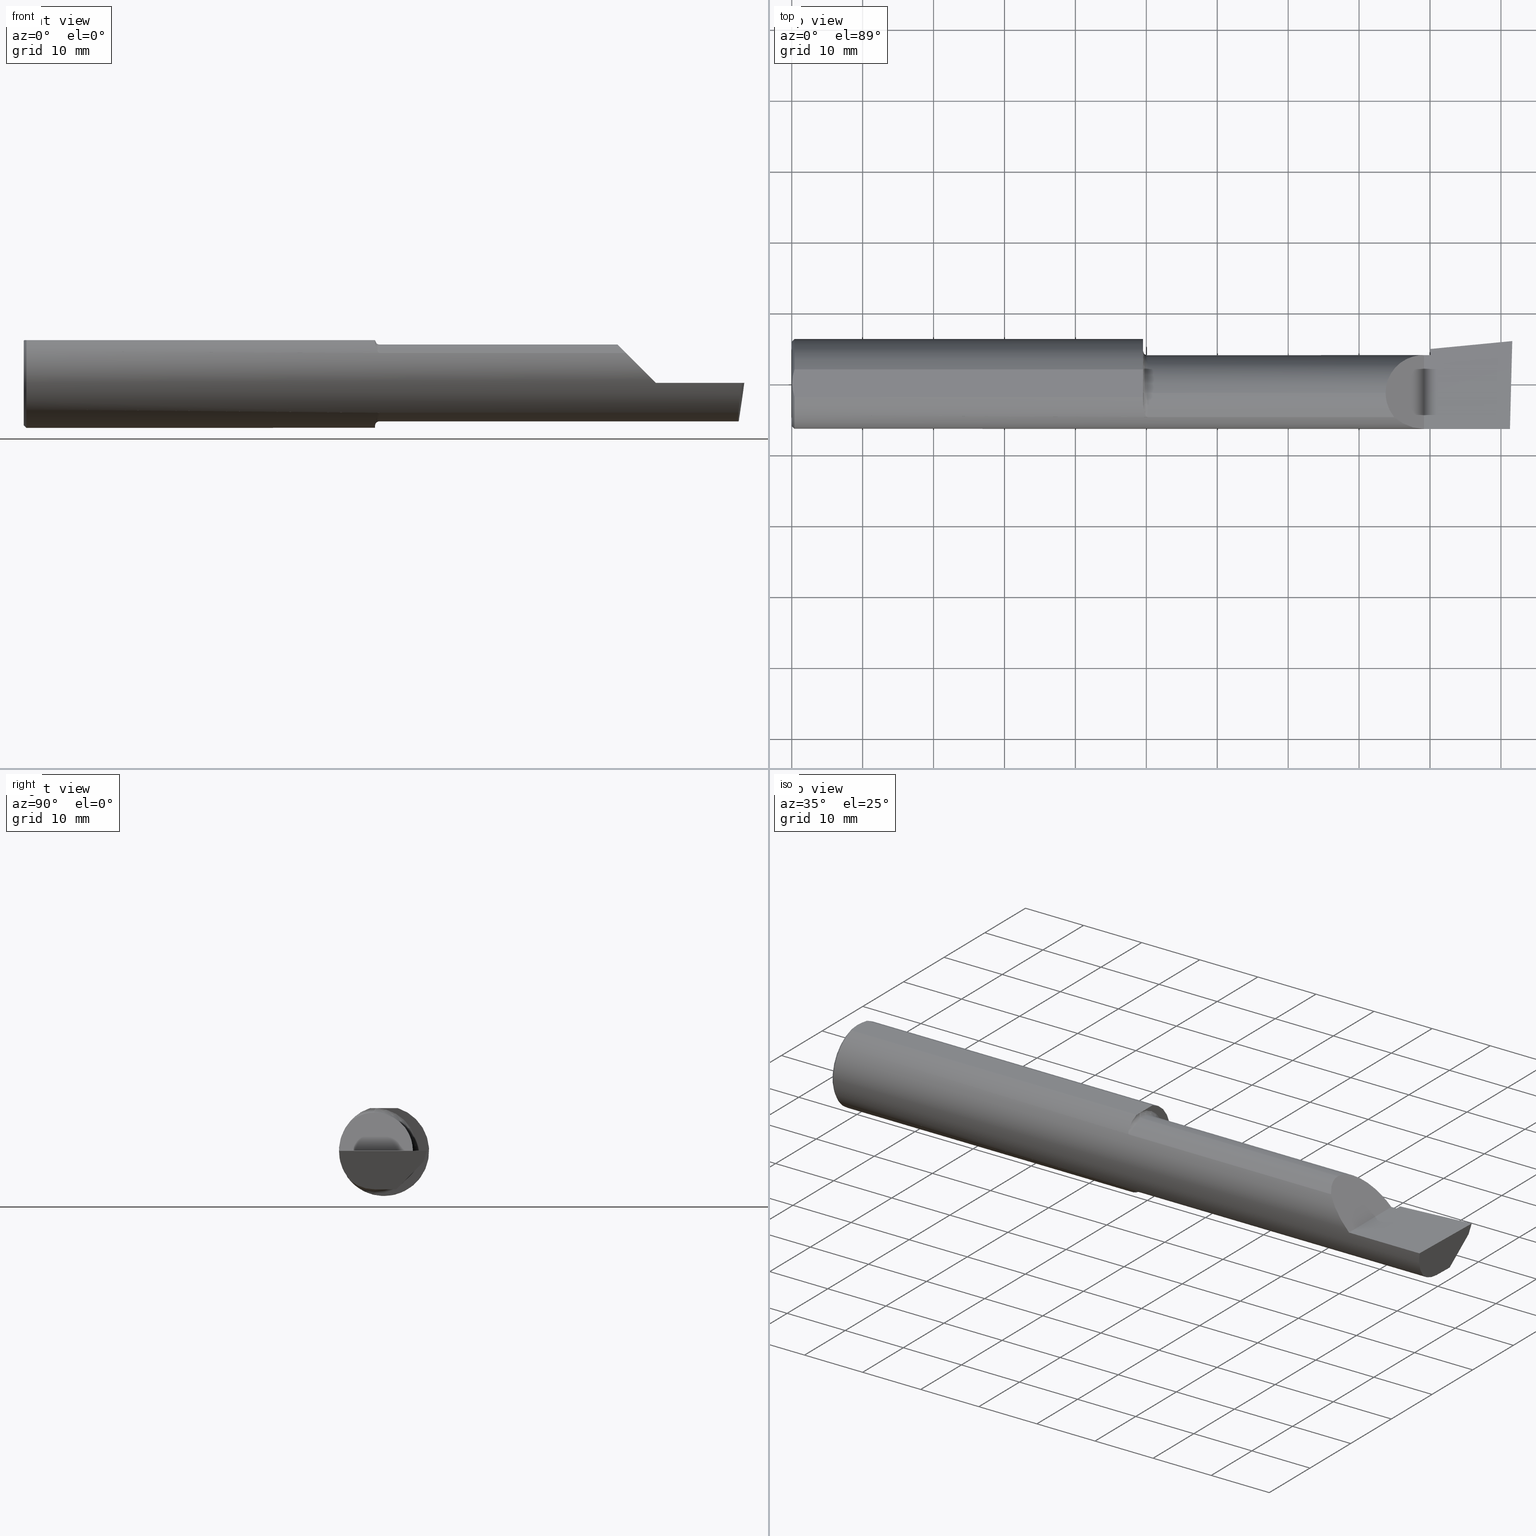
[diagram: canonical four-view strip — front | top / right | iso, engineering-drawing reading convention]
A machine part, canonical four-view strip (front | top / right | iso — engineering-drawing reading convention). The complete STEP part file that produces these views, byte-faithful:
ISO-10303-21;
HEADER;
FILE_DESCRIPTION (( 'STEP AP214' ),
    '1' );
FILE_NAME ('B4902000.STEP',
    '2020-05-06T20:03:42',
    ( '' ),
    ( '' ),
    'SwSTEP 2.0',
    'SolidWorks 2018',
    '' );
FILE_SCHEMA (( 'AUTOMOTIVE_DESIGN' ));
ENDSEC;

DATA;
#1 = DIRECTION ( 'NONE',  ( 0.0000000000000000000, 0.0000000000000000000, -1.000000000000000000 ) ) ;
#2 = CARTESIAN_POINT ( 'NONE',  ( 3.973097331270539989, -0.2278791102234774546, -0.1196748990301325921 ) ) ;
#3 = EDGE_LOOP ( 'NONE', ( #356, #215, #25, #705, #86, #229 ) ) ;
#4 = VECTOR ( 'NONE', #575, 39.37007874015748143 ) ;
#5 = DIRECTION ( 'NONE',  ( 0.0000000000000000000, 0.0000000000000000000, -1.000000000000000000 ) ) ;
#6 = PLANE ( 'NONE',  #497 ) ;
#7 = ORIENTED_EDGE ( 'NONE', *, *, #258, .F. ) ;
#8 = DIRECTION ( 'NONE',  ( 0.0000000000000000000, 1.000000000000000000, 0.0000000000000000000 ) ) ;
#9 = LINE ( 'NONE', #768, #758 ) ;
#10 = ORIENTED_EDGE ( 'NONE', *, *, #766, .T. ) ;
#11 = AXIS2_PLACEMENT_3D ( 'NONE', #68, #427, #5 ) ;
#12 = EDGE_CURVE ( 'NONE', #263, #681, #742, .T. ) ;
#13 = EDGE_CURVE ( 'NONE', #201, #272, #271, .T. ) ;
#14 = ADVANCED_FACE ( 'NONE', ( #139 ), #121, .F. ) ;
#15 = ORIENTED_EDGE ( 'NONE', *, *, #290, .T. ) ;
#16 = ADVANCED_FACE ( 'NONE', ( #433 ), #569, .F. ) ;
#17 = EDGE_CURVE ( 'NONE', #675, #651, #129, .T. ) ;
#18 = EDGE_CURVE ( 'NONE', #115, #515, #627, .T. ) ;
#19 = ORIENTED_EDGE ( 'NONE', *, *, #299, .T. ) ;
#20 = ORIENTED_EDGE ( 'NONE', *, *, #624, .T. ) ;
#21 = AXIS2_PLACEMENT_3D ( 'NONE', #649, #125, #346 ) ;
#22 = CIRCLE ( 'NONE', #288, 0.2381499999999997785 ) ;
#23 =( BOUNDED_CURVE ( )  B_SPLINE_CURVE ( 3, ( #593, #2, #536, #113 ),
 .UNSPECIFIED., .F., .T. ) 
 B_SPLINE_CURVE_WITH_KNOTS ( ( 4, 4 ),
 ( 0.6344818218798794485, 1.360746882514760170 ),
 .UNSPECIFIED. ) 
 CURVE ( )  GEOMETRIC_REPRESENTATION_ITEM ( )  RATIONAL_B_SPLINE_CURVE ( ( 1.000000000000000000, 0.9565258159410998662, 0.9565258159410998662, 1.000000000000000000 ) ) 
 REPRESENTATION_ITEM ( '' )  );
#24 = CIRCLE ( 'NONE', #559, 0.2131499999999998118 ) ;
#25 = ORIENTED_EDGE ( 'NONE', *, *, #327, .F. ) ;
#26 = CARTESIAN_POINT ( 'NONE',  ( 3.544999999999999929, 0.1943384830701263555, 4.685941534278316019E-16 ) ) ;
#27 = DIRECTION ( 'NONE',  ( 0.0000000000000000000, 0.0000000000000000000, 1.000000000000000000 ) ) ;
#28 = ORIENTED_EDGE ( 'NONE', *, *, #55, .F. ) ;
#29 = DIRECTION ( 'NONE',  ( -1.000000000000000000, -0.0000000000000000000, -0.0000000000000000000 ) ) ;
#30 = CARTESIAN_POINT ( 'NONE',  ( 1.950000000000000178, 0.2998500000000000609, 0.2378499999999999504 ) ) ;
#31 = CARTESIAN_POINT ( 'NONE',  ( 3.509999999999999787, 0.1601499999999999035, -6.245698675651499853E-17 ) ) ;
#32 = EDGE_LOOP ( 'NONE', ( #563, #367, #721, #295 ) ) ;
#33 = DIRECTION ( 'NONE',  ( 0.0000000000000000000, -1.000000000000000000, 0.0000000000000000000 ) ) ;
#34 = FACE_OUTER_BOUND ( 'NONE', #32, .T. ) ;
#35 = DIRECTION ( 'NONE',  ( -1.000000000000000000, -0.0000000000000000000, -0.0000000000000000000 ) ) ;
#36 = CARTESIAN_POINT ( 'NONE',  ( 1.975000000000000089, -0.05299999999999998462, 0.0000000000000000000 ) ) ;
#37 = LINE ( 'NONE', #359, #200 ) ;
#38 = ORIENTED_EDGE ( 'NONE', *, *, #386, .T. ) ;
#39 = CARTESIAN_POINT ( 'NONE',  ( 3.296849999999997394, -0.05299999999999998462, 0.2131499999999999506 ) ) ;
#40 = CARTESIAN_POINT ( 'NONE',  ( 0.008160184410935175658, -0.05138200716576606791, 0.2378500000000000336 ) ) ;
#41 = CARTESIAN_POINT ( 'NONE',  ( 0.01499999999999999771, 0.07650098038587481442, 0.2378500000000000059 ) ) ;
#42 = CARTESIAN_POINT ( 'NONE',  ( 1.961268146151109448, -0.1703904609315284036, 0.1828159088808241628 ) ) ;
#43 = CARTESIAN_POINT ( 'NONE',  ( 3.509999999999999787, 0.1601499999999999035, -6.245698675651499853E-17 ) ) ;
#44 = AXIS2_PLACEMENT_3D ( 'NONE', #51, #410, #176 ) ;
#45 = EDGE_CURVE ( 'NONE', #54, #717, #313, .T. ) ;
#46 = EDGE_CURVE ( 'NONE', #351, #574, #631, .T. ) ;
#47 = DIRECTION ( 'NONE',  ( 0.06894566448119619773, -0.7160281025913034503, 0.6946583704589934793 ) ) ;
#48 = EDGE_LOOP ( 'NONE', ( #437, #667, #175, #430, #131 ) ) ;
#49 = CARTESIAN_POINT ( 'NONE',  ( 0.01499999999999999771, 0.0000000000000000000, 0.0000000000000000000 ) ) ;
#50 = ORIENTED_EDGE ( 'NONE', *, *, #710, .T. ) ;
#51 = CARTESIAN_POINT ( 'NONE',  ( 3.544999999999999929, -0.05299999999999998462, 0.0000000000000000000 ) ) ;
#52 = SURFACE_STYLE_USAGE ( .BOTH. , #412 ) ;
#53 = ORIENTED_EDGE ( 'NONE', *, *, #745, .T. ) ;
#54 = VERTEX_POINT ( 'NONE', #755 ) ;
#55 = EDGE_CURVE ( 'NONE', #76, #213, #22, .T. ) ;
#56 = EDGE_CURVE ( 'NONE', #534, #76, #612, .T. ) ;
#57 = ORIENTED_EDGE ( 'NONE', *, *, #216, .T. ) ;
#58 = PLANE ( 'NONE',  #470 ) ;
#59 = DIRECTION ( 'NONE',  ( 0.0000000000000000000, 0.0000000000000000000, 1.000000000000000000 ) ) ;
#60 = LINE ( 'NONE', #682, #517 ) ;
#61 = ORIENTED_EDGE ( 'NONE', *, *, #206, .T. ) ;
#62 = CARTESIAN_POINT ( 'NONE',  ( 3.544999999999999929, 0.02733053485622426171, -0.2131499999999999506 ) ) ;
#63 = DIRECTION ( 'NONE',  ( -1.000000000000000000, -0.0000000000000000000, -0.0000000000000000000 ) ) ;
#64 = SURFACE_STYLE_FILL_AREA ( #133 ) ;
#65 = DIRECTION ( 'NONE',  ( -0.0000000000000000000, 1.000000000000000000, 1.224646799147353207E-16 ) ) ;
#66 = VERTEX_POINT ( 'NONE', #39 ) ;
#67 = ORIENTED_EDGE ( 'NONE', *, *, #668, .T. ) ;
#68 = CARTESIAN_POINT ( 'NONE',  ( 0.01499999999999999771, 0.0000000000000000000, 0.0000000000000000000 ) ) ;
#69 = EDGE_LOOP ( 'NONE', ( #424, #483, #613, #198, #20 ) ) ;
#70 = ADVANCED_FACE ( 'NONE', ( #455 ), #522, .F. ) ;
#71 = EDGE_LOOP ( 'NONE', ( #753, #329, #153, #734, #550, #510, #15, #592 ) ) ;
#72 = ADVANCED_FACE ( 'NONE', ( #479 ), #604, .T. ) ;
#73 = UNCERTAINTY_MEASURE_WITH_UNIT (LENGTH_MEASURE( 1.000000000000000082E-05 ), #119, 'distance_accuracy_value', 'NONE');
#74 = ORIENTED_EDGE ( 'NONE', *, *, #12, .F. ) ;
#75 = DIRECTION ( 'NONE',  ( 0.0000000000000000000, 0.0000000000000000000, 1.000000000000000000 ) ) ;
#76 = VERTEX_POINT ( 'NONE', #160 ) ;
#77 = LINE ( 'NONE', #605, #546 ) ;
#78 = CARTESIAN_POINT ( 'NONE',  ( 0.003000000000000061645, -0.01298133447204029636, 0.2378500000000000059 ) ) ;
#79 = EDGE_LOOP ( 'NONE', ( #666, #370 ) ) ;
#80 = DIRECTION ( 'NONE',  ( 0.0000000000000000000, 0.0000000000000000000, -1.000000000000000000 ) ) ;
#81 = AXIS2_PLACEMENT_3D ( 'NONE', #406, #468, #112 ) ;
#82 = EDGE_CURVE ( 'NONE', #126, #272, #301, .T. ) ;
#83 = EDGE_CURVE ( 'NONE', #733, #717, #570, .T. ) ;
#84 = DIRECTION ( 'NONE',  ( 0.0000000000000000000, 0.0000000000000000000, 1.000000000000000000 ) ) ;
#85 = DIRECTION ( 'NONE',  ( -0.7071067811865439090, 0.0000000000000000000, -0.7071067811865511255 ) ) ;
#86 = ORIENTED_EDGE ( 'NONE', *, *, #17, .F. ) ;
#87 = CARTESIAN_POINT ( 'NONE',  ( 0.004068542164723859197, -0.02585015905295368760, 0.2378499999999999226 ) ) ;
#88 = DIRECTION ( 'NONE',  ( 0.0000000000000000000, 0.0000000000000000000, -1.000000000000000000 ) ) ;
#89 = B_SPLINE_CURVE_WITH_KNOTS ( 'NONE', 3,
 ( #300, #292, #177, #161, #528, #108, #460, #42, #401, #757, #344, #696, #280, #634, #218, #573 ),
 .UNSPECIFIED., .F., .F.,
 ( 4, 2, 2, 2, 2, 2, 2, 4 ),
 ( 0.0001034694911878293507, 0.0009591263138367573955, 0.001814783136485685318, 0.002670439959134612157, 0.003098268370459073082, 0.003312182576121306798, 0.003419139678952416717, 0.003526096781783527069 ),
 .UNSPECIFIED. ) ;
#90 = DIRECTION ( 'NONE',  ( -1.512967610748942321E-16, 0.0000000000000000000, -1.000000000000000000 ) ) ;
#91 = EDGE_CURVE ( 'NONE', #547, #725, #750, .T. ) ;
#92 = EDGE_CURVE ( 'NONE', #204, #661, #274, .T. ) ;
#93 = VECTOR ( 'NONE', #164, 39.37007874015748854 ) ;
#94 = CARTESIAN_POINT ( 'NONE',  ( 3.540349815208491790, 0.05592018782259825654, -0.1832193089843147937 ) ) ;
#95 = DIRECTION ( 'NONE',  ( -0.0000000000000000000, 0.0000000000000000000, 1.000000000000000000 ) ) ;
#96 = LINE ( 'NONE', #465, #714 ) ;
#97 = AXIS2_PLACEMENT_3D ( 'NONE', #168, #584, #228 ) ;
#98 = ORIENTED_EDGE ( 'NONE', *, *, #92, .T. ) ;
#99 = CARTESIAN_POINT ( 'NONE',  ( 0.9762916401177922365, -0.05299999999999998462, 3.208848816020454083E-16 ) ) ;
#100 = VECTOR ( 'NONE', #720, 39.37007874015748143 ) ;
#101 = DIRECTION ( 'NONE',  ( 0.0000000000000000000, 0.0000000000000000000, -1.000000000000000000 ) ) ;
#102 = DIRECTION ( 'NONE',  ( -1.000000000000000000, -0.0000000000000000000, -0.0000000000000000000 ) ) ;
#103 = CARTESIAN_POINT ( 'NONE',  ( 1.950000900032402340, -0.05299999999999998462, 0.2378500000000221548 ) ) ;
#104 = CARTESIAN_POINT ( 'NONE',  ( 3.532795049205047722, 0.1343794326159070129, -0.1015966078791044475 ) ) ;
#105 = VERTEX_POINT ( 'NONE', #62 ) ;
#106 = CARTESIAN_POINT ( 'NONE',  ( 0.01499999999998191669, -0.07650098038590480432, 0.2378500000000000059 ) ) ;
#107 = CARTESIAN_POINT ( 'NONE',  ( 0.003000000000000063380, 0.01299872814765622858, 0.2378499999999999226 ) ) ;
#108 = CARTESIAN_POINT ( 'NONE',  ( 1.955553274544309383, -0.1495649063853952965, 0.2004446339470380423 ) ) ;
#109 = CARTESIAN_POINT ( 'NONE',  ( 1.950000000000000178, 0.1851499999999997870, 0.0000000000000000000 ) ) ;
#110 = CARTESIAN_POINT ( 'NONE',  ( 0.0000000000000000000, 0.0000000000000000000, 0.0000000000000000000 ) ) ;
#111 = VECTOR ( 'NONE', #761, 39.37007874015748854 ) ;
#112 = DIRECTION ( 'NONE',  ( 0.0000000000000000000, 0.0000000000000000000, 1.000000000000000000 ) ) ;
#113 = CARTESIAN_POINT ( 'NONE',  ( 3.987221270274238005, -0.2498499999999999888, -1.346590192650538742E-16 ) ) ;
#114 =( LENGTH_UNIT ( ) NAMED_UNIT ( * ) SI_UNIT ( $, .METRE. ) );
#115 = VERTEX_POINT ( 'NONE', #715 ) ;
#116 = ORIENTED_EDGE ( 'NONE', *, *, #290, .F. ) ;
#117 = CARTESIAN_POINT ( 'NONE',  ( 3.992127980275560262, 0.2189633278254523030, -0.06000000000000001166 ) ) ;
#118 = CARTESIAN_POINT ( 'NONE',  ( 1.975000000000000089, -0.1868028301886795473, -0.1659208399614083562 ) ) ;
#119 =( CONVERSION_BASED_UNIT ( 'INCH', #149 ) LENGTH_UNIT ( ) NAMED_UNIT ( #366 ) );
#120 = PLANE ( 'NONE',  #205 ) ;
#121 = TOROIDAL_SURFACE ( 'NONE', #207, 0.2381499999999997785, 0.02499999999999992159 ) ;
#122 = DIRECTION ( 'NONE',  ( -1.000000000000000000, 5.691349986800549142E-18, -0.0000000000000000000 ) ) ;
#123 = VECTOR ( 'NONE', #712, 39.37007874015748143 ) ;
#124 = DIRECTION ( 'NONE',  ( -0.0000000000000000000, 0.0000000000000000000, 1.000000000000000000 ) ) ;
#125 = DIRECTION ( 'NONE',  ( -1.000000000000000000, -0.0000000000000000000, -0.0000000000000000000 ) ) ;
#126 = VERTEX_POINT ( 'NONE', #686 ) ;
#127 = LINE ( 'NONE', #128, #261 ) ;
#128 = CARTESIAN_POINT ( 'NONE',  ( 3.544999999999999929, 0.2148312740513258212, -0.01988118725737611850 ) ) ;
#129 = LINE ( 'NONE', #731, #184 ) ;
#130 = DIRECTION ( 'NONE',  ( -0.09584575252021046432, 0.9953961983671800740, 0.0000000000000000000 ) ) ;
#131 = ORIENTED_EDGE ( 'NONE', *, *, #18, .F. ) ;
#132 = LINE ( 'NONE', #532, #140 ) ;
#133 = FILL_AREA_STYLE ('',( #485 ) ) ;
#134 = EDGE_CURVE ( 'NONE', #105, #636, #127, .T. ) ;
#135 = ADVANCED_FACE ( 'NONE', ( #422 ), #6, .F. ) ;
#136 = AXIS2_PLACEMENT_3D ( 'NONE', #268, #323, #499 ) ;
#137 = ORIENTED_EDGE ( 'NONE', *, *, #287, .T. ) ;
#138 =( BOUNDED_CURVE ( )  B_SPLINE_CURVE ( 3, ( #340, #692, #158, #512 ),
 .UNSPECIFIED., .F., .T. ) 
 B_SPLINE_CURVE_WITH_KNOTS ( ( 4, 4 ),
 ( 5.604538515477344163, 6.283185307179586232 ),
 .UNSPECIFIED. ) 
 CURVE ( )  GEOMETRIC_REPRESENTATION_ITEM ( )  RATIONAL_B_SPLINE_CURVE ( ( 1.000000000000000000, 0.9619867256453020765, 0.9619867256453020765, 1.000000000000000000 ) ) 
 REPRESENTATION_ITEM ( '' )  );
#139 = FACE_OUTER_BOUND ( 'NONE', #281, .T. ) ;
#140 = VECTOR ( 'NONE', #122, 39.37007874015748143 ) ;
#141 = EDGE_CURVE ( 'NONE', #213, #534, #146, .T. ) ;
#142 = EDGE_CURVE ( 'NONE', #698, #115, #719, .T. ) ;
#143 = ADVANCED_FACE ( 'NONE', ( #578 ), #187, .T. ) ;
#144 = ORIENTED_EDGE ( 'NONE', *, *, #597, .T. ) ;
#145 = AXIS2_PLACEMENT_3D ( 'NONE', #389, #454, #95 ) ;
#146 = LINE ( 'NONE', #303, #100 ) ;
#147 = ORIENTED_EDGE ( 'NONE', *, *, #737, .F. ) ;
#148 = ORIENTED_EDGE ( 'NONE', *, *, #299, .F. ) ;
#149 = LENGTH_MEASURE_WITH_UNIT ( LENGTH_MEASURE( 0.02539999999999999897 ), #472 );
#150 = FACE_OUTER_BOUND ( 'NONE', #320, .T. ) ;
#151 = VERTEX_POINT ( 'NONE', #659 ) ;
#152 = CARTESIAN_POINT ( 'NONE',  ( 1.950000000000000178, 0.0000000000000000000, 0.0000000000000000000 ) ) ;
#153 = ORIENTED_EDGE ( 'NONE', *, *, #486, .F. ) ;
#154 = CARTESIAN_POINT ( 'NONE',  ( 3.966218632342874084, -0.05211540375603083280, -0.2131499999999999229 ) ) ;
#155 = ORIENTED_EDGE ( 'NONE', *, *, #183, .F. ) ;
#156 = DIRECTION ( 'NONE',  ( 0.0000000000000000000, 0.0000000000000000000, -1.000000000000000000 ) ) ;
#157 =( BOUNDED_CURVE ( )  B_SPLINE_CURVE ( 3, ( #284, #587, #759, #403 ),
 .UNSPECIFIED., .F., .F. ) 
 B_SPLINE_CURVE_WITH_KNOTS ( ( 4, 4 ),
 ( 2.868174658477177452, 2.883234730632700415 ),
 .UNSPECIFIED. ) 
 CURVE ( )  GEOMETRIC_REPRESENTATION_ITEM ( )  RATIONAL_B_SPLINE_CURVE ( ( 1.000000000000000000, 0.9999810996081960335, 0.9999810996081960335, 1.000000000000000000 ) ) 
 REPRESENTATION_ITEM ( '' )  );
#158 = CARTESIAN_POINT ( 'NONE',  ( 3.296849999999997394, -0.1021668565906572179, 0.2131499999999999506 ) ) ;
#159 = VECTOR ( 'NONE', #614, 39.37007874015748854 ) ;
#160 = CARTESIAN_POINT ( 'NONE',  ( 1.950000000000000178, -0.08036415094339718901, 0.2365726648265747134 ) ) ;
#161 = CARTESIAN_POINT ( 'NONE',  ( 1.951680550596499808, -0.1214972057705736019, 0.2186080375779519969 ) ) ;
#162 = CARTESIAN_POINT ( 'NONE',  ( 1.950000000000000178, 0.0000000000000000000, 0.0000000000000000000 ) ) ;
#163 = ORIENTED_EDGE ( 'NONE', *, *, #371, .T. ) ;
#164 = DIRECTION ( 'NONE',  ( 0.9953961983671800740, 0.09584575252021027003, -1.636475167022361930E-17 ) ) ;
#165 = CARTESIAN_POINT ( 'NONE',  ( 3.987221270274238005, -0.2498499999999999888, -1.346590192650538742E-16 ) ) ;
#166 = FACE_OUTER_BOUND ( 'NONE', #71, .T. ) ;
#167 = ORIENTED_EDGE ( 'NONE', *, *, #46, .F. ) ;
#168 = CARTESIAN_POINT ( 'NONE',  ( 0.0000000000000000000, 0.0000000000000000000, 0.0000000000000000000 ) ) ;
#169 = CARTESIAN_POINT ( 'NONE',  ( 3.296849999999997394, 0.07186037918017494641, 0.2131499999999999229 ) ) ;
#170 = AXIS2_PLACEMENT_3D ( 'NONE', #353, #63, #706 ) ;
#171 = EDGE_CURVE ( 'NONE', #231, #574, #564, .T. ) ;
#172 = AXIS2_PLACEMENT_3D ( 'NONE', #741, #211, #27 ) ;
#173 = CARTESIAN_POINT ( 'NONE',  ( 3.544999999999999929, 0.2148312740513258212, -0.01988118725737611850 ) ) ;
#174 = DIRECTION ( 'NONE',  ( 0.0000000000000000000, 0.0000000000000000000, 1.000000000000000000 ) ) ;
#175 = ORIENTED_EDGE ( 'NONE', *, *, #83, .F. ) ;
#176 = DIRECTION ( 'NONE',  ( 0.0000000000000000000, 0.0000000000000000000, 1.000000000000000000 ) ) ;
#177 = CARTESIAN_POINT ( 'NONE',  ( 1.950332084145229850, -0.1014027185340452969, 0.2286231260779309771 ) ) ;
#178 =( NAMED_UNIT ( * ) SI_UNIT ( $, .STERADIAN. ) SOLID_ANGLE_UNIT ( ) );
#179 = CARTESIAN_POINT ( 'NONE',  ( 0.0000000000000000000, 2.967931517733664878E-17, 0.2348499999999996424 ) ) ;
#180 = CARTESIAN_POINT ( 'NONE',  ( 1.972232603162240805, -0.1862758070845879077, -0.1665151405181421185 ) ) ;
#181 = EDGE_CURVE ( 'NONE', #725, #661, #77, .T. ) ;
#182 = ORIENTED_EDGE ( 'NONE', *, *, #709, .F. ) ;
#183 = EDGE_CURVE ( 'NONE', #66, #272, #693, .T. ) ;
#184 = VECTOR ( 'NONE', #400, 39.37007874015748143 ) ;
#185 = CARTESIAN_POINT ( 'NONE',  ( 1.951227564404961257, -0.1217005943024302150, -0.2193523119135132593 ) ) ;
#186 = AXIS2_PLACEMENT_3D ( 'NONE', #49, #469, #174 ) ;
#187 = PLANE ( 'NONE',  #618 ) ;
#188 = CIRCLE ( 'NONE', #44, 0.2131500000000001172 ) ;
#189 = EDGE_LOOP ( 'NONE', ( #193, #590, #210, #678, #342, #236, #408, #57, #148, #688, #53, #379, #467 ) ) ;
#190 = DIMENSIONAL_EXPONENTS ( 1.000000000000000000, 0.0000000000000000000, 0.0000000000000000000, 0.0000000000000000000, 0.0000000000000000000, 0.0000000000000000000, 0.0000000000000000000 ) ;
#191 = CARTESIAN_POINT ( 'NONE',  ( 0.01499999999999999771, 3.059780027669661931E-17, 0.2498499999999999888 ) ) ;
#192 = SURFACE_STYLE_USAGE ( .BOTH. , #551 ) ;
#193 = ORIENTED_EDGE ( 'NONE', *, *, #325, .F. ) ;
#194 = MANIFOLD_SOLID_BREP ( '265ADA7A-F065-4edb-8F42-DE5EB427EA39-GAAFaceID11', #673 ) ;
#195 = PRODUCT_DEFINITION_SHAPE ( 'NONE', 'NONE',  #553 ) ;
#196 = ORIENTED_EDGE ( 'NONE', *, *, #473, .T. ) ;
#197 = ADVANCED_FACE ( 'NONE', ( #674 ), #341, .T. ) ;
#198 = ORIENTED_EDGE ( 'NONE', *, *, #82, .T. ) ;
#199 = FACE_OUTER_BOUND ( 'NONE', #302, .T. ) ;
#200 = VECTOR ( 'NONE', #413, 39.37007874015748143 ) ;
#201 = VERTEX_POINT ( 'NONE', #545 ) ;
#202 = AXIS2_PLACEMENT_3D ( 'NONE', #523, #102, #458 ) ;
#203 = EDGE_LOOP ( 'NONE', ( #459, #565, #626, #463, #644, #270 ) ) ;
#204 = VERTEX_POINT ( 'NONE', #544 ) ;
#205 = AXIS2_PLACEMENT_3D ( 'NONE', #643, #47, #230 ) ;
#206 = EDGE_CURVE ( 'NONE', #151, #105, #660, .T. ) ;
#207 = AXIS2_PLACEMENT_3D ( 'NONE', #381, #260, #84 ) ;
#208 = ORIENTED_EDGE ( 'NONE', *, *, #745, .F. ) ;
#209 = DIRECTION ( 'NONE',  ( 0.0000000000000000000, 0.0000000000000000000, 1.000000000000000000 ) ) ;
#210 = ORIENTED_EDGE ( 'NONE', *, *, #445, .T. ) ;
#211 = DIRECTION ( 'NONE',  ( -1.000000000000000000, -0.0000000000000000000, -0.0000000000000000000 ) ) ;
#212 = DIRECTION ( 'NONE',  ( -0.1240019227989248018, -0.3022330132596638408, -0.9451342385281328307 ) ) ;
#213 = VERTEX_POINT ( 'NONE', #330 ) ;
#214 = ADVANCED_BREP_SHAPE_REPRESENTATION ( 'B4902000', ( #194, #503 ), #219 ) ;
#215 = ORIENTED_EDGE ( 'NONE', *, *, #45, .F. ) ;
#216 = EDGE_CURVE ( 'NONE', #534, #351, #37, .T. ) ;
#217 = CARTESIAN_POINT ( 'NONE',  ( 1.975000000000000089, -0.05299999999999998462, 0.2381499999999997785 ) ) ;
#218 = CARTESIAN_POINT ( 'NONE',  ( 1.973548866468135543, -0.1868028301907323219, 0.1659208399590975658 ) ) ;
#219 =( GEOMETRIC_REPRESENTATION_CONTEXT ( 3 ) GLOBAL_UNCERTAINTY_ASSIGNED_CONTEXT ( ( #357 ) ) GLOBAL_UNIT_ASSIGNED_CONTEXT ( ( #537, #594, #235 ) ) REPRESENTATION_CONTEXT ( 'NONE', 'WORKASPACE' ) );
#220 = FACE_OUTER_BOUND ( 'NONE', #203, .T. ) ;
#221 = CARTESIAN_POINT ( 'NONE',  ( 3.965703997523711610, -0.1485302233682060380, -0.1967848538638757028 ) ) ;
#222 = CARTESIAN_POINT ( 'NONE',  ( 4.000000000000000000, 0.2998500000000000609, 0.2378499999999999504 ) ) ;
#223 = DIRECTION ( 'NONE',  ( 0.0000000000000000000, 0.0000000000000000000, 1.000000000000000000 ) ) ;
#224 = CARTESIAN_POINT ( 'NONE',  ( 3.966195468375009359, -0.05299999999999998462, -0.2131499999999999229 ) ) ;
#225 = VECTOR ( 'NONE', #662, 39.37007874015748143 ) ;
#226 = ORIENTED_EDGE ( 'NONE', *, *, #55, .T. ) ;
#227 = DIRECTION ( 'NONE',  ( 0.0000000000000000000, 0.0000000000000000000, -1.000000000000000000 ) ) ;
#228 = DIRECTION ( 'NONE',  ( 0.0000000000000000000, 0.0000000000000000000, 1.000000000000000000 ) ) ;
#229 = ORIENTED_EDGE ( 'NONE', *, *, #407, .F. ) ;
#230 = DIRECTION ( 'NONE',  ( 0.0000000000000000000, -0.6963153109074925462, -0.7177360153954948085 ) ) ;
#231 = VERTEX_POINT ( 'NONE', #179 ) ;
#232 = DIRECTION ( 'NONE',  ( -1.000000000000000000, -0.0000000000000000000, -0.0000000000000000000 ) ) ;
#233 = PLANE ( 'NONE',  #308 ) ;
#234 = CARTESIAN_POINT ( 'NONE',  ( 1.950000900032402340, -0.05299999999999998462, 0.2378500000000221548 ) ) ;
#235 =( NAMED_UNIT ( * ) SI_UNIT ( $, .STERADIAN. ) SOLID_ANGLE_UNIT ( ) );
#236 = ORIENTED_EDGE ( 'NONE', *, *, #669, .F. ) ;
#237 = DIRECTION ( 'NONE',  ( -1.000000000000000000, -0.0000000000000000000, -0.0000000000000000000 ) ) ;
#238 = CARTESIAN_POINT ( 'NONE',  ( 1.949999999999989964, -0.1016924291521895257, -0.2293274111511738322 ) ) ;
#239 = DIRECTION ( 'NONE',  ( 0.0000000000000000000, 0.0000000000000000000, 1.000000000000000000 ) ) ;
#240 = CARTESIAN_POINT ( 'NONE',  ( 0.01499999999999999771, 0.0000000000000000000, 0.0000000000000000000 ) ) ;
#241 = CARTESIAN_POINT ( 'NONE',  ( 1.969285582744839003, -0.1841881072713813239, -0.1688230283719346636 ) ) ;
#242 = LINE ( 'NONE', #99, #256 ) ;
#243 = VECTOR ( 'NONE', #520, 39.37007874015748143 ) ;
#244 = ORIENTED_EDGE ( 'NONE', *, *, #409, .T. ) ;
#245 = COLOUR_RGB ( '',0.7529411764705882248, 0.7529411764705882248, 0.7529411764705882248 ) ;
#246 = DIRECTION ( 'NONE',  ( 0.0000000000000000000, 1.000000000000000000, -1.707404996040164265E-16 ) ) ;
#247 = ORIENTED_EDGE ( 'NONE', *, *, #181, .T. ) ;
#248 = AXIS2_PLACEMENT_3D ( 'NONE', #109, #638, #227 ) ;
#249 =( CONVERSION_BASED_UNIT ( 'INCH', #415 ) LENGTH_UNIT ( ) NAMED_UNIT ( #431 ) );
#250 = EDGE_CURVE ( 'NONE', #725, #312, #188, .T. ) ;
#251 = AXIS2_PLACEMENT_3D ( 'NONE', #314, #505, #75 ) ;
#252 = ORIENTED_EDGE ( 'NONE', *, *, #250, .F. ) ;
#253 = ORIENTED_EDGE ( 'NONE', *, *, #432, .T. ) ;
#254 = VERTEX_POINT ( 'NONE', #423 ) ;
#255 = ADVANCED_FACE ( 'NONE', ( #495 ), #319, .T. ) ;
#256 = VECTOR ( 'NONE', #633, 39.37007874015748143 ) ;
#257 = CIRCLE ( 'NONE', #186, 0.2498499999999999888 ) ;
#258 = EDGE_CURVE ( 'NONE', #312, #204, #521, .T. ) ;
#259 = ORIENTED_EDGE ( 'NONE', *, *, #556, .F. ) ;
#260 = DIRECTION ( 'NONE',  ( -1.000000000000000000, -0.0000000000000000000, -0.0000000000000000000 ) ) ;
#261 = VECTOR ( 'NONE', #304, 39.37007874015748143 ) ;
#262 = ORIENTED_EDGE ( 'NONE', *, *, #624, .F. ) ;
#263 = VERTEX_POINT ( 'NONE', #347 ) ;
#264 = CYLINDRICAL_SURFACE ( 'NONE', #21, 0.2131499999999999506 ) ;
#265 = CARTESIAN_POINT ( 'NONE',  ( 3.544999999999999929, 0.05698775240724700958, -0.1825804393148460492 ) ) ;
#266 = STYLED_ITEM ( 'NONE', ( #318 ), #214 ) ;
#267 = ADVANCED_FACE ( 'NONE', ( #166 ), #120, .F. ) ;
#268 = CARTESIAN_POINT ( 'NONE',  ( 1.975000000000000089, -0.05299999999999998462, 0.0000000000000000000 ) ) ;
#269 = CARTESIAN_POINT ( 'NONE',  ( 3.544999999999999929, -0.05299999999999998462, 0.0000000000000000000 ) ) ;
#270 = ORIENTED_EDGE ( 'NONE', *, *, #372, .F. ) ;
#271 = CIRCLE ( 'NONE', #136, 0.2131499999999998118 ) ;
#272 = VERTEX_POINT ( 'NONE', #591 ) ;
#273 = CARTESIAN_POINT ( 'NONE',  ( 3.390325100969866501, -0.2278791102234777877, 0.1196748990301320231 ) ) ;
#274 = LINE ( 'NONE', #334, #732 ) ;
#275 = B_SPLINE_CURVE_WITH_KNOTS ( 'NONE', 3,
 ( #118, #645, #180, #716, #241, #541, #657, #414, #707, #354, #296, #185, #238, #603 ),
 .UNSPECIFIED., .F., .F.,
 ( 4, 2, 2, 2, 2, 2, 4 ),
 ( 1.967619685288262155E-07, 0.0001090840123077999220, 0.0002179712626470710205, 0.0004357457633256021316, 0.0008712947646826641910, 0.001742392767396786467, 0.003484588772825029934 ),
 .UNSPECIFIED. ) ;
#276 = PLANE ( 'NONE',  #405 ) ;
#277 = CARTESIAN_POINT ( 'NONE',  ( 1.950001800093990711, -0.05698398688203909490, 0.2378499975680403167 ) ) ;
#278 = DIRECTION ( 'NONE',  ( -1.000000000000000000, -0.0000000000000000000, -0.0000000000000000000 ) ) ;
#279 = CARTESIAN_POINT ( 'NONE',  ( 0.01499999999999999771, 0.07650098038587481442, 0.2378500000000000059 ) ) ;
#280 = CARTESIAN_POINT ( 'NONE',  ( 1.970144309637441138, -0.1849788583324334656, 0.1679547276881063755 ) ) ;
#281 = EDGE_LOOP ( 'NONE', ( #554, #748, #567, #67 ) ) ;
#282 = CARTESIAN_POINT ( 'NONE',  ( 1.950000000000000178, -0.06494989539702750170, 0.2378500000000000059 ) ) ;
#283 = VECTOR ( 'NONE', #652, 39.37007874015748854 ) ;
#284 = CARTESIAN_POINT ( 'NONE',  ( 3.532795049205047722, 0.1343794326159070129, -0.1015966078791044475 ) ) ;
#285 = CARTESIAN_POINT ( 'NONE',  ( 3.532795049205047722, 0.1343794326159070129, -0.1015966078791044475 ) ) ;
#286 = CARTESIAN_POINT ( 'NONE',  ( 1.950000000000000178, 0.07650098038587482829, 0.2378500000000000059 ) ) ;
#287 = EDGE_CURVE ( 'NONE', #426, #518, #298, .T. ) ;
#288 = AXIS2_PLACEMENT_3D ( 'NONE', #632, #278, #580 ) ;
#289 = EDGE_LOOP ( 'NONE', ( #316, #765, #602 ) ) ;
#290 = EDGE_CURVE ( 'NONE', #426, #312, #157, .T. ) ;
#291 = CARTESIAN_POINT ( 'NONE',  ( 3.537149611766882806, 0.08915557130098397676, -0.1634615431086028359 ) ) ;
#292 = CARTESIAN_POINT ( 'NONE',  ( 1.950000000000000178, -0.09104204635388241096, 0.2329453649474653443 ) ) ;
#293 = APPLICATION_PROTOCOL_DEFINITION ( 'draft international standard', 'automotive_design', 1998, #352 ) ;
#294 = CARTESIAN_POINT ( 'NONE',  ( 3.983714411583733295, 0.1632262006094473417, -0.1166167083458063969 ) ) ;
#295 = ORIENTED_EDGE ( 'NONE', *, *, #432, .F. ) ;
#296 = CARTESIAN_POINT ( 'NONE',  ( 1.955537042546467541, -0.1495003888704991013, -0.2004994225712671274 ) ) ;
#297 = PRODUCT_CONTEXT ( 'NONE', #352, 'mechanical' ) ;
#298 =( BOUNDED_CURVE ( )  B_SPLINE_CURVE ( 3, ( #104, #749, #291, #526 ),
 .UNSPECIFIED., .F., .T. ) 
 B_SPLINE_CURVE_WITH_KNOTS ( ( 4, 4 ),
 ( 0.4968328636548220434, 1.034445644973937428 ),
 .UNSPECIFIED. ) 
 CURVE ( )  GEOMETRIC_REPRESENTATION_ITEM ( )  RATIONAL_B_SPLINE_CURVE ( ( 1.000000000000000000, 0.9760590552538852549, 0.9760590552538852549, 1.000000000000000000 ) ) 
 REPRESENTATION_ITEM ( '' )  );
#299 = EDGE_CURVE ( 'NONE', #681, #351, #462, .T. ) ;
#300 = CARTESIAN_POINT ( 'NONE',  ( 1.950000000000000178, -0.08036415094339718901, 0.2365726648265747134 ) ) ;
#301 = CIRCLE ( 'NONE', #487, 0.02499999999999990424 ) ;
#302 = EDGE_LOOP ( 'NONE', ( #163, #420 ) ) ;
#303 = CARTESIAN_POINT ( 'NONE',  ( 1.950000000000000178, 0.2998500000000000609, 0.2378499999999999504 ) ) ;
#304 = DIRECTION ( 'NONE',  ( 0.0000000000000000000, 0.6963153109074925462, 0.7177360153954948085 ) ) ;
#305 = FACE_OUTER_BOUND ( 'NONE', #3, .T. ) ;
#306 = VERTEX_POINT ( 'NONE', #697 ) ;
#307 = PRESENTATION_LAYER_ASSIGNMENT (  '', '', ( #266 ) ) ;
#308 = AXIS2_PLACEMENT_3D ( 'NONE', #530, #704, #535 ) ;
#309 = ADVANCED_FACE ( 'NONE', ( #150 ), #233, .T. ) ;
#310 = ORIENTED_EDGE ( 'NONE', *, *, #141, .F. ) ;
#311 = ADVANCED_FACE ( 'NONE', ( #305 ), #596, .F. ) ;
#312 = VERTEX_POINT ( 'NONE', #474 ) ;
#313 = LINE ( 'NONE', #154, #159 ) ;
#314 = CARTESIAN_POINT ( 'NONE',  ( 1.975000000000000089, -0.05299999999999998462, 0.0000000000000000000 ) ) ;
#315 = FACE_OUTER_BOUND ( 'NONE', #289, .T. ) ;
#316 = ORIENTED_EDGE ( 'NONE', *, *, #134, .F. ) ;
#317 = CARTESIAN_POINT ( 'NONE',  ( 0.01120982745448978989, -0.06412238594540857484, 0.2378500000000000336 ) ) ;
#318 = PRESENTATION_STYLE_ASSIGNMENT (( #52 ) ) ;
#319 = CYLINDRICAL_SURFACE ( 'NONE', #170, 0.2498499999999999888 ) ;
#320 = EDGE_LOOP ( 'NONE', ( #491, #226, #496 ) ) ;
#321 = DIRECTION ( 'NONE',  ( 0.0000000000000000000, 0.0000000000000000000, 1.000000000000000000 ) ) ;
#322 = AXIS2_PLACEMENT_3D ( 'NONE', #36, #396, #691 ) ;
#323 = DIRECTION ( 'NONE',  ( -1.000000000000000000, -0.0000000000000000000, -0.0000000000000000000 ) ) ;
#324 = DIRECTION ( 'NONE',  ( -1.000000000000000000, -0.0000000000000000000, -0.0000000000000000000 ) ) ;
#325 = EDGE_CURVE ( 'NONE', #733, #515, #9, .T. ) ;
#326 = AXIS2_PLACEMENT_3D ( 'NONE', #162, #336, #101 ) ;
#327 = EDGE_CURVE ( 'NONE', #349, #54, #616, .T. ) ;
#328 = CARTESIAN_POINT ( 'NONE',  ( 0.0000000000000000000, -0.05299999999999998462, 0.0000000000000000000 ) ) ;
#329 = ORIENTED_EDGE ( 'NONE', *, *, #327, .T. ) ;
#330 = CARTESIAN_POINT ( 'NONE',  ( 1.950000000000000178, -0.06494989539702750170, 0.2378500000000000059 ) ) ;
#331 = ORIENTED_EDGE ( 'NONE', *, *, #447, .T. ) ;
#332 = CARTESIAN_POINT ( 'NONE',  ( 3.541916792879878706, 0.05627666367902794953, -0.1830073912696822958 ) ) ;
#333 = CARTESIAN_POINT ( 'NONE',  ( 2.760000000000000231, -0.1868028301886794917, 0.1659208399614086338 ) ) ;
#334 = CARTESIAN_POINT ( 'NONE',  ( 3.544999999999999929, 0.1943384830701256338, -1.839472377423811672E-15 ) ) ;
#335 = CARTESIAN_POINT ( 'NONE',  ( 3.544999999999999929, 0.05698775240724700958, -0.1825804393148460492 ) ) ;
#336 = DIRECTION ( 'NONE',  ( 1.000000000000000000, 0.0000000000000000000, 0.0000000000000000000 ) ) ;
#337 = FACE_OUTER_BOUND ( 'NONE', #48, .T. ) ;
#338 = ORIENTED_EDGE ( 'NONE', *, *, #727, .F. ) ;
#339 = DIRECTION ( 'NONE',  ( 0.0000000000000000000, -1.138839417068643993E-16, -1.000000000000000000 ) ) ;
#340 = CARTESIAN_POINT ( 'NONE',  ( 3.344079160038589293, -0.1868028301886799636, 0.1659208399614081619 ) ) ;
#341 = CONICAL_SURFACE ( 'NONE', #11, 0.2498499999999999888, 0.7853981633974601584 ) ;
#342 = ORIENTED_EDGE ( 'NONE', *, *, #744, .F. ) ;
#343 = CARTESIAN_POINT ( 'NONE',  ( 0.008199648822848978544, 0.05156445313451100965, 0.2378500000000000059 ) ) ;
#344 = CARTESIAN_POINT ( 'NONE',  ( 1.967018584423772198, -0.1817363555988619483, 0.1714722504633800215 ) ) ;
#345 = PRODUCT ( 'B4902000', 'B4902000', '', ( #297 ) ) ;
#346 = DIRECTION ( 'NONE',  ( 0.0000000000000000000, 0.0000000000000000000, 1.000000000000000000 ) ) ;
#347 = CARTESIAN_POINT ( 'NONE',  ( 0.0000000000000000000, 0.0000000000000000000, -0.2348499999999996424 ) ) ;
#348 = MECHANICAL_DESIGN_GEOMETRIC_PRESENTATION_REPRESENTATION (  '', ( #266 ), #383 ) ;
#349 = VERTEX_POINT ( 'NONE', #117 ) ;
#350 = DIRECTION ( 'NONE',  ( 0.0000000000000000000, 0.6963153109074925462, 0.7177360153954948085 ) ) ;
#351 = VERTEX_POINT ( 'NONE', #417 ) ;
#352 = APPLICATION_CONTEXT ( 'automotive_design' ) ;
#353 = CARTESIAN_POINT ( 'NONE',  ( 0.0000000000000000000, 0.0000000000000000000, 0.0000000000000000000 ) ) ;
#354 = CARTESIAN_POINT ( 'NONE',  ( 1.957341173198633433, -0.1582250006961563038, -0.1936724403215123180 ) ) ;
#355 = APPLICATION_PROTOCOL_DEFINITION ( 'draft international standard', 'automotive_design', 1998, #708 ) ;
#356 = ORIENTED_EDGE ( 'NONE', *, *, #83, .T. ) ;
#357 = UNCERTAINTY_MEASURE_WITH_UNIT (LENGTH_MEASURE( 1.000000000000000082E-05 ), #537, 'distance_accuracy_value', 'NONE');
#358 = CARTESIAN_POINT ( 'NONE',  ( 3.509999999999999787, -0.2500000000000000555, -6.245698675651499853E-17 ) ) ;
#359 = CARTESIAN_POINT ( 'NONE',  ( 0.0000000000000000000, -0.07650098038587477278, 0.2378500000000000059 ) ) ;
#360 = FACE_OUTER_BOUND ( 'NONE', #703, .T. ) ;
#361 = LENGTH_MEASURE_WITH_UNIT ( LENGTH_MEASURE( 0.02539999999999999897 ), #114 );
#362 = DIRECTION ( 'NONE',  ( 9.717439401676380705E-34, 1.707404996040164512E-16, 1.000000000000000000 ) ) ;
#363 = VECTOR ( 'NONE', #246, 39.37007874015748143 ) ;
#364 = CARTESIAN_POINT ( 'NONE',  ( 4.000000000000000000, -0.05299999999999998462, -0.2131499999999999229 ) ) ;
#365 = ORIENTED_EDGE ( 'NONE', *, *, #171, .F. ) ;
#366 = DIMENSIONAL_EXPONENTS ( 1.000000000000000000, 0.0000000000000000000, 0.0000000000000000000, 0.0000000000000000000, 0.0000000000000000000, 0.0000000000000000000, 0.0000000000000000000 ) ;
#367 = ORIENTED_EDGE ( 'NONE', *, *, #509, .F. ) ;
#368 = ORIENTED_EDGE ( 'NONE', *, *, #556, .T. ) ;
#369 = ADVANCED_FACE ( 'NONE', ( #441 ), #58, .T. ) ;
#370 = ORIENTED_EDGE ( 'NONE', *, *, #287, .F. ) ;
#371 = EDGE_CURVE ( 'NONE', #263, #231, #738, .T. ) ;
#372 = EDGE_CURVE ( 'NONE', #254, #547, #606, .T. ) ;
#373 = ADVANCED_FACE ( 'NONE', ( #586 ), #743, .T. ) ;
#374 = LINE ( 'NONE', #387, #658 ) ;
#375 = SURFACE_STYLE_FILL_AREA ( #764 ) ;
#376 = PRESENTATION_STYLE_ASSIGNMENT (( #192 ) ) ;
#377 = ORIENTED_EDGE ( 'NONE', *, *, #45, .T. ) ;
#378 = CARTESIAN_POINT ( 'NONE',  ( 1.975000000000000089, -0.05299999999999998462, 0.0000000000000000000 ) ) ;
#379 = ORIENTED_EDGE ( 'NONE', *, *, #623, .F. ) ;
#380 = ORIENTED_EDGE ( 'NONE', *, *, #486, .T. ) ;
#381 = CARTESIAN_POINT ( 'NONE',  ( 1.975000000000000089, -0.05299999999999998462, 0.0000000000000000000 ) ) ;
#382 = DIRECTION ( 'NONE',  ( 0.0000000000000000000, 0.0000000000000000000, 1.000000000000000000 ) ) ;
#383 =( GEOMETRIC_REPRESENTATION_CONTEXT ( 3 ) GLOBAL_UNCERTAINTY_ASSIGNED_CONTEXT ( ( #73 ) ) GLOBAL_UNIT_ASSIGNED_CONTEXT ( ( #119, #540, #178 ) ) REPRESENTATION_CONTEXT ( 'NONE', 'WORKASPACE' ) );
#384 = AXIS2_PLACEMENT_3D ( 'NONE', #763, #637, #648 ) ;
#385 = ORIENTED_EDGE ( 'NONE', *, *, #91, .T. ) ;
#386 = EDGE_CURVE ( 'NONE', #717, #151, #132, .T. ) ;
#387 = CARTESIAN_POINT ( 'NONE',  ( 0.0000000000000000000, -0.05299999999999996381, -0.2131499999999999506 ) ) ;
#388 = DIRECTION ( 'NONE',  ( 0.0000000000000000000, -1.000000000000000000, 1.138839417068643993E-16 ) ) ;
#389 = CARTESIAN_POINT ( 'NONE',  ( 3.544999999999999929, 0.1943384830701196664, 0.0000000000000000000 ) ) ;
#390 = FACE_OUTER_BOUND ( 'NONE', #646, .T. ) ;
#391 = LINE ( 'NONE', #333, #243 ) ;
#392 = CARTESIAN_POINT ( 'NONE',  ( 3.535684672073138302, 0.1043695517189374422, -0.2900000000000000910 ) ) ;
#393 = ORIENTED_EDGE ( 'NONE', *, *, #508, .T. ) ;
#394 = B_SPLINE_CURVE_WITH_KNOTS ( 'NONE', 3,
 ( #583, #107, #756, #343, #695, #279 ),
 .UNSPECIFIED., .F., .F.,
 ( 4, 2, 4 ),
 ( 0.004653101494310745746, 0.005634627094920350784, 0.006616152695529954955 ),
 .UNSPECIFIED. ) ;
#395 = CARTESIAN_POINT ( 'NONE',  ( 0.0000000000000000000, -0.05299999999999998462, 0.0000000000000000000 ) ) ;
#396 = DIRECTION ( 'NONE',  ( -1.000000000000000000, -0.0000000000000000000, -0.0000000000000000000 ) ) ;
#397 = CARTESIAN_POINT ( 'NONE',  ( 0.01499999999999999771, 0.0000000000000000000, -0.2498499999999999888 ) ) ;
#398 = VECTOR ( 'NONE', #548, 39.37007874015748143 ) ;
#399 = CARTESIAN_POINT ( 'NONE',  ( 3.527186805775590628, 0.1926232675529001570, -6.829619984160658046E-17 ) ) ;
#400 = DIRECTION ( 'NONE',  ( 0.02617694830786742102, 0.9996573249755573709, -3.960487493805273848E-18 ) ) ;
#401 = CARTESIAN_POINT ( 'NONE',  ( 1.962758562425230169, -0.1743135686468870738, 0.1790760091940038767 ) ) ;
#402 = ORIENTED_EDGE ( 'NONE', *, *, #557, .T. ) ;
#403 = CARTESIAN_POINT ( 'NONE',  ( 3.544999999999999929, 0.1328281892403430642, -0.1044069278527782890 ) ) ;
#404 = CARTESIAN_POINT ( 'NONE',  ( 3.528944985009565993, 0.1743638780700111635, -0.06000000000000001166 ) ) ;
#405 = AXIS2_PLACEMENT_3D ( 'NONE', #222, #339, #519 ) ;
#406 = CARTESIAN_POINT ( 'NONE',  ( 0.01499999999999999771, 0.0000000000000000000, 0.0000000000000000000 ) ) ;
#407 = EDGE_CURVE ( 'NONE', #733, #675, #23, .T. ) ;
#408 = ORIENTED_EDGE ( 'NONE', *, *, #56, .F. ) ;
#409 = EDGE_CURVE ( 'NONE', #698, #730, #450, .T. ) ;
#410 = DIRECTION ( 'NONE',  ( -1.000000000000000000, -0.0000000000000000000, -0.0000000000000000000 ) ) ;
#411 = ORIENTED_EDGE ( 'NONE', *, *, #216, .F. ) ;
#412 = SURFACE_SIDE_STYLE ('',( #375 ) ) ;
#413 = DIRECTION ( 'NONE',  ( -1.000000000000000000, -0.0000000000000000000, -0.0000000000000000000 ) ) ;
#414 = CARTESIAN_POINT ( 'NONE',  ( 1.962797058507745884, -0.1743943839926591910, -0.1789958554125694323 ) ) ;
#415 = LENGTH_MEASURE_WITH_UNIT ( LENGTH_MEASURE( 0.02539999999999999897 ), #607 );
#416 = CIRCLE ( 'NONE', #202, 0.2381499999999997785 ) ;
#417 = CARTESIAN_POINT ( 'NONE',  ( 0.01499999999998191669, -0.07650098038590480432, 0.2378500000000000059 ) ) ;
#418 = CIRCLE ( 'NONE', #97, 0.2348499999999996424 ) ;
#419 = DIRECTION ( 'NONE',  ( -1.000000000000000000, -0.0000000000000000000, -0.0000000000000000000 ) ) ;
#420 = ORIENTED_EDGE ( 'NONE', *, *, #737, .T. ) ;
#421 =( NAMED_UNIT ( * ) SI_UNIT ( $, .STERADIAN. ) SOLID_ANGLE_UNIT ( ) );
#422 = FACE_OUTER_BOUND ( 'NONE', #740, .T. ) ;
#423 = CARTESIAN_POINT ( 'NONE',  ( 3.509999999999999787, -0.2498499999999999610, -6.245698675651499853E-17 ) ) ;
#424 = ORIENTED_EDGE ( 'NONE', *, *, #142, .F. ) ;
#425 = CARTESIAN_POINT ( 'NONE',  ( 1.975000000000000089, -0.05299999999999996381, -0.2381499999999997785 ) ) ;
#426 = VERTEX_POINT ( 'NONE', #285 ) ;
#427 = DIRECTION ( 'NONE',  ( 1.000000000000000000, 0.0000000000000000000, 0.0000000000000000000 ) ) ;
#428 = VECTOR ( 'NONE', #653, 39.37007874015748143 ) ;
#429 = AXIS2_PLACEMENT_3D ( 'NONE', #477, #419, #59 ) ;
#430 = ORIENTED_EDGE ( 'NONE', *, *, #325, .T. ) ;
#431 = DIMENSIONAL_EXPONENTS ( 1.000000000000000000, 0.0000000000000000000, 0.0000000000000000000, 0.0000000000000000000, 0.0000000000000000000, 0.0000000000000000000, 0.0000000000000000000 ) ;
#432 = EDGE_CURVE ( 'NONE', #66, #547, #654, .T. ) ;
#433 = FACE_OUTER_BOUND ( 'NONE', #69, .T. ) ;
#434 = AXIS2_PLACEMENT_3D ( 'NONE', #269, #619, #209 ) ;
#435 = ADVANCED_FACE ( 'NONE', ( #729 ), #699, .T. ) ;
#436 = UNCERTAINTY_MEASURE_WITH_UNIT (LENGTH_MEASURE( 1.000000000000000082E-05 ), #249, 'distance_accuracy_value', 'NONE');
#437 = ORIENTED_EDGE ( 'NONE', *, *, #599, .F. ) ;
#438 = DIRECTION ( 'NONE',  ( 0.7071067811865391350, 0.0000000000000000000, -0.7071067811865558994 ) ) ;
#439 = ORIENTED_EDGE ( 'NONE', *, *, #92, .F. ) ;
#440 = ORIENTED_EDGE ( 'NONE', *, *, #599, .T. ) ;
#441 = FACE_OUTER_BOUND ( 'NONE', #621, .T. ) ;
#442 = CARTESIAN_POINT ( 'NONE',  ( 4.000000000000015099, 0.2381500000000413564, 1.299164461486961275E-13 ) ) ;
#443 = DIRECTION ( 'NONE',  ( -0.7071067811865511255, 0.0000000000000000000, 0.7071067811865439090 ) ) ;
#444 = ORIENTED_EDGE ( 'NONE', *, *, #183, .T. ) ;
#445 = EDGE_CURVE ( 'NONE', #675, #254, #600, .T. ) ;
#446 = AXIS2_PLACEMENT_3D ( 'NONE', #399, #457, #752 ) ;
#447 = EDGE_CURVE ( 'NONE', #574, #488, #394, .T. ) ;
#448 = CARTESIAN_POINT ( 'NONE',  ( 0.003000000000000035624, 4.000210840755228160E-17, 0.2378500000000000059 ) ) ;
#449 = EDGE_LOOP ( 'NONE', ( #529, #368, #196, #244 ) ) ;
#450 = CIRCLE ( 'NONE', #555, 0.2381499999999997785 ) ;
#451 = DIRECTION ( 'NONE',  ( -1.000000000000000000, 0.0000000000000000000, 1.512967610748942321E-16 ) ) ;
#452 = CARTESIAN_POINT ( 'NONE',  ( 0.003000000000000035624, 4.000210840755228160E-17, 0.2378500000000000059 ) ) ;
#453 = CARTESIAN_POINT ( 'NONE',  ( 4.000000000000000000, -0.2500000000000000555, -1.365923996832131609E-16 ) ) ;
#454 = DIRECTION ( 'NONE',  ( -1.000000000000000000, 0.0000000000000000000, -0.0000000000000000000 ) ) ;
#455 = FACE_OUTER_BOUND ( 'NONE', #549, .T. ) ;
#456 = CARTESIAN_POINT ( 'NONE',  ( 3.448145753305725147, -0.2498500000000001831, 0.06185424669427438960 ) ) ;
#457 = DIRECTION ( 'NONE',  ( 0.09165774897393338949, -0.9519021185660614393, 0.2923717047227301080 ) ) ;
#458 = DIRECTION ( 'NONE',  ( 0.0000000000000000000, 0.0000000000000000000, 1.000000000000000000 ) ) ;
#459 = ORIENTED_EDGE ( 'NONE', *, *, #445, .F. ) ;
#460 = CARTESIAN_POINT ( 'NONE',  ( 1.957343635746627175, -0.1582230848692700864, 0.1936715022401946373 ) ) ;
#461 = AXIS2_PLACEMENT_3D ( 'NONE', #425, #65, #484 ) ;
#462 = CIRCLE ( 'NONE', #81, 0.2498499999999999888 ) ;
#463 = ORIENTED_EDGE ( 'NONE', *, *, #181, .F. ) ;
#464 = CARTESIAN_POINT ( 'NONE',  ( 3.385139620819825446, 0.1601500000000001811, 0.1248603791801746327 ) ) ;
#465 = CARTESIAN_POINT ( 'NONE',  ( 3.528944985009565993, 0.1743638780700111635, -0.06000000000000001166 ) ) ;
#466 = PRODUCT_DEFINITION_CONTEXT ( 'detailed design', #708, 'design' ) ;
#467 = ORIENTED_EDGE ( 'NONE', *, *, #668, .F. ) ;
#468 = DIRECTION ( 'NONE',  ( -1.000000000000000000, -0.0000000000000000000, -0.0000000000000000000 ) ) ;
#469 = DIRECTION ( 'NONE',  ( -1.000000000000000000, -0.0000000000000000000, -0.0000000000000000000 ) ) ;
#470 = AXIS2_PLACEMENT_3D ( 'NONE', #711, #476, #124 ) ;
#471 = ORIENTED_EDGE ( 'NONE', *, *, #447, .F. ) ;
#472 =( LENGTH_UNIT ( ) NAMED_UNIT ( * ) SI_UNIT ( $, .METRE. ) );
#473 = EDGE_CURVE ( 'NONE', #306, #698, #416, .T. ) ;
#474 = CARTESIAN_POINT ( 'NONE',  ( 3.544999999999999929, 0.1328281892403430642, -0.1044069278527782890 ) ) ;
#475 = AXIS2_PLACEMENT_3D ( 'NONE', #568, #506, #88 ) ;
#476 = DIRECTION ( 'NONE',  ( -1.000000000000000000, 0.0000000000000000000, -0.0000000000000000000 ) ) ;
#477 = CARTESIAN_POINT ( 'NONE',  ( 0.0000000000000000000, 0.0000000000000000000, 0.0000000000000000000 ) ) ;
#478 = ORIENTED_EDGE ( 'NONE', *, *, #82, .F. ) ;
#479 = FACE_OUTER_BOUND ( 'NONE', #739, .T. ) ;
#480 = LINE ( 'NONE', #404, #111 ) ;
#481 = CARTESIAN_POINT ( 'NONE',  ( 3.544999999999999929, -0.05299999999999998462, -0.2131499999999999229 ) ) ;
#482 = COLOUR_RGB ( '',0.7529411764705882248, 0.7529411764705882248, 0.7529411764705882248 ) ;
#483 = ORIENTED_EDGE ( 'NONE', *, *, #473, .F. ) ;
#484 = DIRECTION ( 'NONE',  ( 0.0000000000000000000, 0.0000000000000000000, 1.000000000000000000 ) ) ;
#485 = FILL_AREA_STYLE_COLOUR ( '', #245 ) ;
#486 = EDGE_CURVE ( 'NONE', #105, #54, #571, .T. ) ;
#487 = AXIS2_PLACEMENT_3D ( 'NONE', #217, #33, #156 ) ;
#488 = VERTEX_POINT ( 'NONE', #41 ) ;
#489 =( BOUNDED_CURVE ( )  B_SPLINE_CURVE ( 3, ( #576, #456, #273, #629 ),
 .UNSPECIFIED., .F., .F. ) 
 B_SPLINE_CURVE_WITH_KNOTS ( ( 4, 4 ),
 ( 4.712388980384687898, 5.438654041019568730 ),
 .UNSPECIFIED. ) 
 CURVE ( )  GEOMETRIC_REPRESENTATION_ITEM ( )  RATIONAL_B_SPLINE_CURVE ( ( 1.000000000000000000, 0.9565258159410998662, 0.9565258159410998662, 1.000000000000000000 ) ) 
 REPRESENTATION_ITEM ( '' )  );
#490 = ADVANCED_FACE ( 'NONE', ( #560 ), #713, .F. ) ;
#491 = ORIENTED_EDGE ( 'NONE', *, *, #56, .T. ) ;
#492 = CIRCLE ( 'NONE', #625, 0.2498499999999999888 ) ;
#493 = ORIENTED_EDGE ( 'NONE', *, *, #709, .T. ) ;
#494 = CARTESIAN_POINT ( 'NONE',  ( 0.01499999999999999771, 0.0000000000000000000, -0.2498499999999999888 ) ) ;
#495 = FACE_OUTER_BOUND ( 'NONE', #189, .T. ) ;
#496 = ORIENTED_EDGE ( 'NONE', *, *, #141, .T. ) ;
#497 = AXIS2_PLACEMENT_3D ( 'NONE', #364, #362, #718 ) ;
#498 = DIRECTION ( 'NONE',  ( 1.000000000000000000, 0.0000000000000000000, 0.0000000000000000000 ) ) ;
#499 = DIRECTION ( 'NONE',  ( 0.0000000000000000000, 0.0000000000000000000, 1.000000000000000000 ) ) ;
#500 = PLANE ( 'NONE',  #601 ) ;
#501 = ADVANCED_FACE ( 'NONE', ( #390 ), #276, .F. ) ;
#502 = ORIENTED_EDGE ( 'NONE', *, *, #250, .T. ) ;
#503 = AXIS2_PLACEMENT_3D ( 'NONE', #110, #239, #650 ) ;
#504 = AXIS2_PLACEMENT_3D ( 'NONE', #240, #656, #1 ) ;
#505 = DIRECTION ( 'NONE',  ( -1.000000000000000000, -0.0000000000000000000, -0.0000000000000000000 ) ) ;
#506 = DIRECTION ( 'NONE',  ( 1.000000000000000000, 0.0000000000000000000, 0.0000000000000000000 ) ) ;
#507 = EDGE_LOOP ( 'NONE', ( #365, #531, #617, #19, #609 ) ) ;
#508 = EDGE_CURVE ( 'NONE', #661, #651, #242, .T. ) ;
#509 = EDGE_CURVE ( 'NONE', #254, #677, #489, .T. ) ;
#510 = ORIENTED_EDGE ( 'NONE', *, *, #680, .F. ) ;
#511 = PLANE ( 'NONE',  #642 ) ;
#512 = CARTESIAN_POINT ( 'NONE',  ( 3.296849999999997394, -0.05299999999999998462, 0.2131499999999999506 ) ) ;
#513 = CARTESIAN_POINT ( 'NONE',  ( 7.089685198749692867E-32, 0.1601499999999999313, 4.685946446163635703E-16 ) ) ;
#514 = CARTESIAN_POINT ( 'NONE',  ( 1.975000000000000089, -0.1868028301886795473, -0.1659208399614083562 ) ) ;
#515 = VERTEX_POINT ( 'NONE', #514 ) ;
#516 = CARTESIAN_POINT ( 'NONE',  ( 3.964907988924523785, -0.1021668565906570375, -0.2131500000000000061 ) ) ;
#517 = VECTOR ( 'NONE', #212, 39.37007874015748143 ) ;
#518 = VERTEX_POINT ( 'NONE', #94 ) ;
#519 = DIRECTION ( 'NONE',  ( 0.0000000000000000000, 1.000000000000000000, -1.138839417068643993E-16 ) ) ;
#520 = DIRECTION ( 'NONE',  ( 1.000000000000000000, 0.0000000000000000000, 0.0000000000000000000 ) ) ;
#521 = LINE ( 'NONE', #173, #635 ) ;
#522 = PLANE ( 'NONE',  #446 ) ;
#523 = CARTESIAN_POINT ( 'NONE',  ( 1.950000000000000178, -0.05299999999999998462, 0.0000000000000000000 ) ) ;
#524 = CARTESIAN_POINT ( 'NONE',  ( 3.344079160038589293, -0.1868028301886799636, 0.1659208399614081619 ) ) ;
#525 = SHAPE_DEFINITION_REPRESENTATION ( #195, #214 ) ;
#526 = CARTESIAN_POINT ( 'NONE',  ( 3.540349815208491790, 0.05592018782259825654, -0.1832193089843147937 ) ) ;
#527 = CARTESIAN_POINT ( 'NONE',  ( 7.089685198749692867E-32, -0.2498499999999999610, 4.685946446163635703E-16 ) ) ;
#528 = CARTESIAN_POINT ( 'NONE',  ( 1.952700302592143666, -0.1312404656039931616, 0.2128935242986061960 ) ) ;
#529 = ORIENTED_EDGE ( 'NONE', *, *, #623, .T. ) ;
#530 = CARTESIAN_POINT ( 'NONE',  ( 1.950000000000000178, 0.1851499999999997870, 0.0000000000000000000 ) ) ;
#531 = ORIENTED_EDGE ( 'NONE', *, *, #371, .F. ) ;
#532 = CARTESIAN_POINT ( 'NONE',  ( 4.000000000000000000, -0.05299999999999998462, -0.2131499999999999229 ) ) ;
#533 = FILL_AREA_STYLE_COLOUR ( '', #482 ) ;
#534 = VERTEX_POINT ( 'NONE', #689 ) ;
#535 = DIRECTION ( 'NONE',  ( 0.0000000000000000000, 0.0000000000000000000, -1.000000000000000000 ) ) ;
#536 = CARTESIAN_POINT ( 'NONE',  ( 3.979623920331825104, -0.2498500000000000443, -0.06185424669427502103 ) ) ;
#537 =( CONVERSION_BASED_UNIT ( 'INCH', #361 ) LENGTH_UNIT ( ) NAMED_UNIT ( #190 ) );
#538 = EDGE_CURVE ( 'NONE', #636, #518, #767, .T. ) ;
#539 = AXIS2_PLACEMENT_3D ( 'NONE', #395, #35, #223 ) ;
#540 =( NAMED_UNIT ( * ) PLANE_ANGLE_UNIT ( ) SI_UNIT ( $, .RADIAN. ) );
#541 = CARTESIAN_POINT ( 'NONE',  ( 1.967016733372313642, -0.1817333077058771729, -0.1714754572696060575 ) ) ;
#542 = CARTESIAN_POINT ( 'NONE',  ( 1.950001800035618071, -0.04901601311796529442, 0.2378500024320483464 ) ) ;
#543 = LINE ( 'NONE', #30, #687 ) ;
#544 = CARTESIAN_POINT ( 'NONE',  ( 3.544999999999999929, 0.1759098001822370638, -0.06000000000000001166 ) ) ;
#545 = CARTESIAN_POINT ( 'NONE',  ( 1.975000000000000089, -0.1868028301886798248, 0.1659208399614081619 ) ) ;
#546 = VECTOR ( 'NONE', #8, 39.37007874015748143 ) ;
#547 = VERTEX_POINT ( 'NONE', #31 ) ;
#548 = DIRECTION ( 'NONE',  ( 0.7071067811865391350, 8.659560562355035164E-17, 0.7071067811865558994 ) ) ;
#549 = EDGE_LOOP ( 'NONE', ( #393, #402, #338, #98 ) ) ;
#550 = ORIENTED_EDGE ( 'NONE', *, *, #538, .T. ) ;
#551 = SURFACE_SIDE_STYLE ('',( #64 ) ) ;
#552 = ADVANCED_FACE ( 'NONE', ( #220 ), #511, .F. ) ;
#553 = PRODUCT_DEFINITION ( 'UNKNOWN', '', #595, #466 ) ;
#554 = ORIENTED_EDGE ( 'NONE', *, *, #409, .F. ) ;
#555 = AXIS2_PLACEMENT_3D ( 'NONE', #640, #232, #588 ) ;
#556 = EDGE_CURVE ( 'NONE', #760, #306, #543, .T. ) ;
#557 = EDGE_CURVE ( 'NONE', #651, #349, #60, .T. ) ;
#558 = ADVANCED_FACE ( 'NONE', ( #199 ), #622, .F. ) ;
#559 = AXIS2_PLACEMENT_3D ( 'NONE', #378, #735, #321 ) ;
#560 = FACE_OUTER_BOUND ( 'NONE', #615, .T. ) ;
#561 = ORIENTED_EDGE ( 'NONE', *, *, #744, .T. ) ;
#562 = LINE ( 'NONE', #589, #690 ) ;
#563 = ORIENTED_EDGE ( 'NONE', *, *, #710, .F. ) ;
#564 = LINE ( 'NONE', #191, #398 ) ;
#565 = ORIENTED_EDGE ( 'NONE', *, *, #17, .T. ) ;
#566 = CARTESIAN_POINT ( 'NONE',  ( 1.950000000000000178, -0.04105010460297241898, 0.2378500000000000059 ) ) ;
#567 = ORIENTED_EDGE ( 'NONE', *, *, #18, .T. ) ;
#568 = CARTESIAN_POINT ( 'NONE',  ( 0.0000000000000000000, 0.0000000000000000000, 0.0000000000000000000 ) ) ;
#569 = TOROIDAL_SURFACE ( 'NONE', #251, 0.2381499999999997785, 0.02499999999999992159 ) ;
#570 =( BOUNDED_CURVE ( )  B_SPLINE_CURVE ( 3, ( #628, #221, #516, #572 ),
 .UNSPECIFIED., .F., .T. ) 
 B_SPLINE_CURVE_WITH_KNOTS ( ( 4, 4 ),
 ( 5.814587959757482771, 6.493234751459722176 ),
 .UNSPECIFIED. ) 
 CURVE ( )  GEOMETRIC_REPRESENTATION_ITEM ( )  RATIONAL_B_SPLINE_CURVE ( ( 1.000000000000000000, 0.9619867256453022986, 0.9619867256453022986, 1.000000000000000000 ) ) 
 REPRESENTATION_ITEM ( '' )  );
#571 = LINE ( 'NONE', #581, #93 ) ;
#572 = CARTESIAN_POINT ( 'NONE',  ( 3.966195468375009359, -0.05299999999999998462, -0.2131499999999999229 ) ) ;
#573 = CARTESIAN_POINT ( 'NONE',  ( 1.975000000000000089, -0.1868028301886798248, 0.1659208399614081619 ) ) ;
#574 = VERTEX_POINT ( 'NONE', #448 ) ;
#575 = DIRECTION ( 'NONE',  ( 1.000000000000000000, 0.0000000000000000000, 0.0000000000000000000 ) ) ;
#576 = CARTESIAN_POINT ( 'NONE',  ( 3.509999999999999787, -0.2498499999999999610, -6.245698675651499853E-17 ) ) ;
#577 = CARTESIAN_POINT ( 'NONE',  ( 3.968492717492762889, -0.1868028301886794917, -0.1659208399614086338 ) ) ;
#578 = FACE_OUTER_BOUND ( 'NONE', #79, .T. ) ;
#579 = B_SPLINE_CURVE_WITH_KNOTS ( 'NONE', 3,
 ( #566, #676, #542, #234 ),
 .UNSPECIFIED., .F., .F.,
 ( 4, 4 ),
 ( 0.0000000000000000000, 0.4999999999997232769 ),
 .UNSPECIFIED. ) ;
#580 = DIRECTION ( 'NONE',  ( 0.0000000000000000000, 0.0000000000000000000, 1.000000000000000000 ) ) ;
#581 = CARTESIAN_POINT ( 'NONE',  ( 3.988156289907357266, 0.07000163221415003911, -0.2131499999999999506 ) ) ;
#582 = PLANE ( 'NONE',  #145 ) ;
#583 = CARTESIAN_POINT ( 'NONE',  ( 0.003000000000000035624, 4.000210840755228160E-17, 0.2378500000000000059 ) ) ;
#584 = DIRECTION ( 'NONE',  ( -1.000000000000000000, -0.0000000000000000000, -0.0000000000000000000 ) ) ;
#585 = STYLED_ITEM ( 'NONE', ( #376 ), #194 ) ;
#586 = FACE_OUTER_BOUND ( 'NONE', #507, .T. ) ;
#587 = CARTESIAN_POINT ( 'NONE',  ( 3.536975816846328335, 0.1338694103809223435, -0.1025372660271280101 ) ) ;
#588 = DIRECTION ( 'NONE',  ( 0.0000000000000000000, 0.0000000000000000000, 1.000000000000000000 ) ) ;
#589 = CARTESIAN_POINT ( 'NONE',  ( 0.0000000000000000000, 0.07650098038587481442, 0.2378500000000000059 ) ) ;
#590 = ORIENTED_EDGE ( 'NONE', *, *, #407, .T. ) ;
#591 = CARTESIAN_POINT ( 'NONE',  ( 1.975000000000000089, -0.05299999999999998462, 0.2131499999999998118 ) ) ;
#592 = ORIENTED_EDGE ( 'NONE', *, *, #258, .T. ) ;
#593 = CARTESIAN_POINT ( 'NONE',  ( 3.968492717492762889, -0.1868028301886794917, -0.1659208399614086338 ) ) ;
#594 =( NAMED_UNIT ( * ) PLANE_ANGLE_UNIT ( ) SI_UNIT ( $, .RADIAN. ) );
#595 = PRODUCT_DEFINITION_FORMATION_WITH_SPECIFIED_SOURCE ( 'ANY', '', #345, .NOT_KNOWN. ) ;
#596 = PLANE ( 'NONE',  #384 ) ;
#597 = EDGE_CURVE ( 'NONE', #636, #151, #672, .T. ) ;
#598 = VECTOR ( 'NONE', #438, 39.37007874015748143 ) ;
#599 = EDGE_CURVE ( 'NONE', #151, #115, #374, .T. ) ;
#600 = LINE ( 'NONE', #527, #123 ) ;
#601 = AXIS2_PLACEMENT_3D ( 'NONE', #679, #85, #443 ) ;
#602 = ORIENTED_EDGE ( 'NONE', *, *, #597, .F. ) ;
#603 = CARTESIAN_POINT ( 'NONE',  ( 1.950000000000000178, -0.08036415094339718901, -0.2365726648265747134 ) ) ;
#604 = CYLINDRICAL_SURFACE ( 'NONE', #539, 0.2131499999999999506 ) ;
#605 = CARTESIAN_POINT ( 'NONE',  ( 3.544999999999999929, -0.2500000000000000555, -6.775237339413629936E-17 ) ) ;
#606 = LINE ( 'NONE', #358, #428 ) ;
#607 =( LENGTH_UNIT ( ) NAMED_UNIT ( * ) SI_UNIT ( $, .METRE. ) );
#608 = ADVANCED_FACE ( 'NONE', ( #34 ), #500, .F. ) ;
#609 = ORIENTED_EDGE ( 'NONE', *, *, #46, .T. ) ;
#610 = ORIENTED_EDGE ( 'NONE', *, *, #669, .T. ) ;
#611 = ADVANCED_FACE ( 'NONE', ( #360 ), #630, .T. ) ;
#612 = CIRCLE ( 'NONE', #326, 0.2498499999999999888 ) ;
#613 = ORIENTED_EDGE ( 'NONE', *, *, #647, .T. ) ;
#614 = DIRECTION ( 'NONE',  ( -0.02617694830786740021, -0.9996573249755573709, 1.706819910991413033E-16 ) ) ;
#615 = EDGE_LOOP ( 'NONE', ( #478, #493, #28, #610, #762 ) ) ;
#616 = LINE ( 'NONE', #294, #283 ) ;
#617 = ORIENTED_EDGE ( 'NONE', *, *, #12, .T. ) ;
#618 = AXIS2_PLACEMENT_3D ( 'NONE', #392, #723, #130 ) ;
#619 = DIRECTION ( 'NONE',  ( -1.000000000000000000, -0.0000000000000000000, -0.0000000000000000000 ) ) ;
#620 = PRODUCT_RELATED_PRODUCT_CATEGORY ( 'part', '', ( #345 ) ) ;
#621 = EDGE_LOOP ( 'NONE', ( #7, #252, #247, #439 ) ) ;
#622 = PLANE ( 'NONE',  #475 ) ;
#623 = EDGE_CURVE ( 'NONE', #730, #760, #492, .T. ) ;
#624 = EDGE_CURVE ( 'NONE', #272, #115, #24, .T. ) ;
#625 = AXIS2_PLACEMENT_3D ( 'NONE', #152, #498, #80 ) ;
#626 = ORIENTED_EDGE ( 'NONE', *, *, #508, .F. ) ;
#627 = CIRCLE ( 'NONE', #172, 0.2131499999999998118 ) ;
#628 = CARTESIAN_POINT ( 'NONE',  ( 3.968492717492762889, -0.1868028301886794917, -0.1659208399614086338 ) ) ;
#629 = CARTESIAN_POINT ( 'NONE',  ( 3.344079160038589293, -0.1868028301886799636, 0.1659208399614081619 ) ) ;
#630 = CYLINDRICAL_SURFACE ( 'NONE', #670, 0.2131499999999999506 ) ;
#631 = B_SPLINE_CURVE_WITH_KNOTS ( 'NONE', 3,
 ( #106, #317, #40, #87, #78, #452 ),
 .UNSPECIFIED., .F., .F.,
 ( 4, 2, 4 ),
 ( 0.002692677063605041030, 0.003672889278957893171, 0.004653101494310745746 ),
 .UNSPECIFIED. ) ;
#632 = CARTESIAN_POINT ( 'NONE',  ( 1.950000000000000178, -0.05299999999999998462, 0.0000000000000000000 ) ) ;
#633 = DIRECTION ( 'NONE',  ( 0.9953961983671787417, 0.09584575252022453640, -1.506002207992170776E-16 ) ) ;
#634 = CARTESIAN_POINT ( 'NONE',  ( 1.972243150415551316, -0.1862809296394750125, 0.1665094106511985084 ) ) ;
#635 = VECTOR ( 'NONE', #350, 39.37007874015748143 ) ;
#636 = VERTEX_POINT ( 'NONE', #265 ) ;
#637 = DIRECTION ( 'NONE',  ( -0.9922060308645490601, 0.02598182930468765500, 0.1218693434051388302 ) ) ;
#638 = DIRECTION ( 'NONE',  ( 1.000000000000000000, 0.0000000000000000000, 0.0000000000000000000 ) ) ;
#639 = CARTESIAN_POINT ( 'NONE',  ( 1.950000000000000178, -0.06096394231309124750, 0.2378500000000000059 ) ) ;
#640 = CARTESIAN_POINT ( 'NONE',  ( 1.950000000000000178, -0.05299999999999998462, 0.0000000000000000000 ) ) ;
#641 = DIRECTION ( 'NONE',  ( 1.000000000000000000, 0.0000000000000000000, 0.0000000000000000000 ) ) ;
#642 = AXIS2_PLACEMENT_3D ( 'NONE', #453, #90, #451 ) ;
#643 = CARTESIAN_POINT ( 'NONE',  ( 3.528944985009565993, 0.1743638780700111635, -0.06000000000000001166 ) ) ;
#644 = ORIENTED_EDGE ( 'NONE', *, *, #91, .F. ) ;
#645 = CARTESIAN_POINT ( 'NONE',  ( 1.973547768521292767, -0.1868028301886798526, -0.1659208399614082452 ) ) ;
#646 = EDGE_LOOP ( 'NONE', ( #259, #208, #471, #167, #411, #310, #182, #665 ) ) ;
#647 = EDGE_CURVE ( 'NONE', #306, #126, #579, .T. ) ;
#648 = DIRECTION ( 'NONE',  ( 0.1219104985252742052, 0.0000000000000000000, 0.9925410975618687015 ) ) ;
#649 = CARTESIAN_POINT ( 'NONE',  ( 0.0000000000000000000, -0.05299999999999998462, 0.0000000000000000000 ) ) ;
#650 = DIRECTION ( 'NONE',  ( 1.000000000000000000, 0.0000000000000000000, 0.0000000000000000000 ) ) ;
#651 = VERTEX_POINT ( 'NONE', #442 ) ;
#652 = DIRECTION ( 'NONE',  ( -0.1053106618241713005, -0.6976485211320173629, -0.7086580314005225256 ) ) ;
#653 = DIRECTION ( 'NONE',  ( -0.0000000000000000000, 1.000000000000000000, -0.0000000000000000000 ) ) ;
#654 =( BOUNDED_CURVE ( )  B_SPLINE_CURVE ( 3, ( #702, #169, #464, #43 ),
 .UNSPECIFIED., .F., .T. ) 
 B_SPLINE_CURVE_WITH_KNOTS ( ( 4, 4 ),
 ( 0.0000000000000000000, 1.570796326794898112 ),
 .UNSPECIFIED. ) 
 CURVE ( )  GEOMETRIC_REPRESENTATION_ITEM ( )  RATIONAL_B_SPLINE_CURVE ( ( 1.000000000000000000, 0.8047378541243646044, 0.8047378541243646044, 1.000000000000000000 ) ) 
 REPRESENTATION_ITEM ( '' )  );
#655 = EDGE_LOOP ( 'NONE', ( #147, #726, #331, #10, #74 ) ) ;
#656 = DIRECTION ( 'NONE',  ( 1.000000000000000000, 0.0000000000000000000, 0.0000000000000000000 ) ) ;
#657 = CARTESIAN_POINT ( 'NONE',  ( 1.965875558094659858, -0.1799506819598042651, -0.1733486322212176578 ) ) ;
#658 = VECTOR ( 'NONE', #29, 39.37007874015748143 ) ;
#659 = CARTESIAN_POINT ( 'NONE',  ( 3.544999999999999929, -0.05299999999999998462, -0.2131499999999999229 ) ) ;
#660 = LINE ( 'NONE', #481, #363 ) ;
#661 = VERTEX_POINT ( 'NONE', #26 ) ;
#662 = DIRECTION ( 'NONE',  ( -1.000000000000000000, -0.0000000000000000000, -0.0000000000000000000 ) ) ;
#663 = PRESENTATION_LAYER_ASSIGNMENT (  '', '', ( #585 ) ) ;
#664 =( NAMED_UNIT ( * ) PLANE_ANGLE_UNIT ( ) SI_UNIT ( $, .RADIAN. ) );
#665 = ORIENTED_EDGE ( 'NONE', *, *, #647, .F. ) ;
#666 = ORIENTED_EDGE ( 'NONE', *, *, #680, .T. ) ;
#667 = ORIENTED_EDGE ( 'NONE', *, *, #386, .F. ) ;
#668 = EDGE_CURVE ( 'NONE', #515, #730, #275, .T. ) ;
#669 = EDGE_CURVE ( 'NONE', #76, #201, #89, .T. ) ;
#670 = AXIS2_PLACEMENT_3D ( 'NONE', #328, #324, #382 ) ;
#671 = ADVANCED_FACE ( 'NONE', ( #337 ), #264, .T. ) ;
#672 = CIRCLE ( 'NONE', #434, 0.2131500000000001172 ) ;
#673 = CLOSED_SHELL ( 'NONE', ( #611, #72, #14, #16, #197, #728, #255, #501, #552, #608, #558, #373, #490, #435, #309, #369, #671, #135, #70, #267, #143, #311 ) ) ;
#674 = FACE_OUTER_BOUND ( 'NONE', #655, .T. ) ;
#675 = VERTEX_POINT ( 'NONE', #165 ) ;
#676 = CARTESIAN_POINT ( 'NONE',  ( 1.950000000000000178, -0.04503596074371393754, 0.2378500000000000059 ) ) ;
#677 = VERTEX_POINT ( 'NONE', #524 ) ;
#678 = ORIENTED_EDGE ( 'NONE', *, *, #509, .T. ) ;
#679 = CARTESIAN_POINT ( 'NONE',  ( 3.509999999999999787, -0.2500000000000000555, -6.245698675651499853E-17 ) ) ;
#680 = EDGE_CURVE ( 'NONE', #426, #518, #480, .T. ) ;
#681 = VERTEX_POINT ( 'NONE', #397 ) ;
#682 = CARTESIAN_POINT ( 'NONE',  ( 3.991023571893940858, 0.2162715254282656929, -0.06841772571928599056 ) ) ;
#683 = DIRECTION ( 'NONE',  ( 0.0000000000000000000, 0.2936076258024057917, 0.9559260233253795702 ) ) ;
#684 = CARTESIAN_POINT ( 'NONE',  ( 3.540349815208491790, 0.05592018782259825654, -0.1832193089843147937 ) ) ;
#685 = CARTESIAN_POINT ( 'NONE',  ( 3.544999999999999929, 0.1601500000000001256, 4.685946446163640633E-16 ) ) ;
#686 = CARTESIAN_POINT ( 'NONE',  ( 1.950000900032402340, -0.05299999999999998462, 0.2378500000000221548 ) ) ;
#687 = VECTOR ( 'NONE', #388, 39.37007874015748143 ) ;
#688 = ORIENTED_EDGE ( 'NONE', *, *, #766, .F. ) ;
#689 = CARTESIAN_POINT ( 'NONE',  ( 1.950000000000000178, -0.07650098038590480432, 0.2378500000000000059 ) ) ;
#690 = VECTOR ( 'NONE', #641, 39.37007874015748143 ) ;
#691 = DIRECTION ( 'NONE',  ( 0.0000000000000000000, 0.0000000000000000000, 1.000000000000000000 ) ) ;
#692 = CARTESIAN_POINT ( 'NONE',  ( 3.313215146136121447, -0.1485302233682063711, 0.1967848538638755085 ) ) ;
#693 = LINE ( 'NONE', #722, #225 ) ;
#694 = B_SPLINE_CURVE_WITH_KNOTS ( 'NONE', 3,
 ( #103, #277, #639, #282 ),
 .UNSPECIFIED., .F., .F.,
 ( 4, 4 ),
 ( 0.4999999999997232769, 1.000000000000000000 ),
 .UNSPECIFIED. ) ;
#695 = CARTESIAN_POINT ( 'NONE',  ( 0.01120763235350239959, 0.06411521680875344187, 0.2378500000000000336 ) ) ;
#696 = CARTESIAN_POINT ( 'NONE',  ( 1.969290397284158001, -0.1841927918507052786, 0.1688179232533552621 ) ) ;
#697 = CARTESIAN_POINT ( 'NONE',  ( 1.950000000000000178, -0.04105010460297241898, 0.2378500000000000059 ) ) ;
#698 = VERTEX_POINT ( 'NONE', #754 ) ;
#699 = PLANE ( 'NONE',  #248 ) ;
#700 = CARTESIAN_POINT ( 'NONE',  ( 1.950000000000000178, -0.08036415094339718901, -0.2365726648265747134 ) ) ;
#701 = MECHANICAL_DESIGN_GEOMETRIC_PRESENTATION_REPRESENTATION (  '', ( #585 ), #736 ) ;
#702 = CARTESIAN_POINT ( 'NONE',  ( 3.296849999999997394, -0.05299999999999998462, 0.2131499999999999506 ) ) ;
#703 = EDGE_LOOP ( 'NONE', ( #144, #440, #262, #155, #253, #385, #502, #116, #137, #751 ) ) ;
#704 = DIRECTION ( 'NONE',  ( 1.000000000000000000, 0.0000000000000000000, 0.0000000000000000000 ) ) ;
#705 = ORIENTED_EDGE ( 'NONE', *, *, #557, .F. ) ;
#706 = DIRECTION ( 'NONE',  ( 0.0000000000000000000, 0.0000000000000000000, 1.000000000000000000 ) ) ;
#707 = CARTESIAN_POINT ( 'NONE',  ( 1.961285743882607679, -0.1704402150608120003, -0.1827701868778692784 ) ) ;
#708 = APPLICATION_CONTEXT ( 'automotive_design' ) ;
#709 = EDGE_CURVE ( 'NONE', #126, #213, #694, .T. ) ;
#710 = EDGE_CURVE ( 'NONE', #677, #66, #138, .T. ) ;
#711 = CARTESIAN_POINT ( 'NONE',  ( 3.544999999999999929, 0.1943384830701196664, 0.0000000000000000000 ) ) ;
#712 = DIRECTION ( 'NONE',  ( -1.000000000000000000, -0.0000000000000000000, -0.0000000000000000000 ) ) ;
#713 = TOROIDAL_SURFACE ( 'NONE', #322, 0.2381499999999997785, 0.02499999999999992159 ) ;
#714 = VECTOR ( 'NONE', #747, 39.37007874015748854 ) ;
#715 = CARTESIAN_POINT ( 'NONE',  ( 1.975000000000000089, -0.05299999999999996381, -0.2131499999999998118 ) ) ;
#716 = CARTESIAN_POINT ( 'NONE',  ( 1.970138573936399906, -0.1849738682364332476, -0.1679602226613248483 ) ) ;
#717 = VERTEX_POINT ( 'NONE', #224 ) ;
#718 = DIRECTION ( 'NONE',  ( 0.0000000000000000000, -1.000000000000000000, 1.707404996040164512E-16 ) ) ;
#719 = CIRCLE ( 'NONE', #461, 0.02499999999999990424 ) ;
#720 = DIRECTION ( 'NONE',  ( 0.0000000000000000000, -1.000000000000000000, 1.138839417068643993E-16 ) ) ;
#721 = ORIENTED_EDGE ( 'NONE', *, *, #372, .T. ) ;
#722 = CARTESIAN_POINT ( 'NONE',  ( 0.0000000000000000000, -0.05299999999999998462, 0.2131499999999999506 ) ) ;
#723 = DIRECTION ( 'NONE',  ( 0.9953961983671800740, 0.09584575252021046432, -3.362767318382027372E-14 ) ) ;
#724 = ORIENTED_EDGE ( 'NONE', *, *, #13, .F. ) ;
#725 = VERTEX_POINT ( 'NONE', #685 ) ;
#726 = ORIENTED_EDGE ( 'NONE', *, *, #171, .T. ) ;
#727 = EDGE_CURVE ( 'NONE', #204, #349, #96, .T. ) ;
#728 = ADVANCED_FACE ( 'NONE', ( #315 ), #582, .T. ) ;
#729 = FACE_OUTER_BOUND ( 'NONE', #449, .T. ) ;
#730 = VERTEX_POINT ( 'NONE', #700 ) ;
#731 = CARTESIAN_POINT ( 'NONE',  ( 3.987226101480004559, -0.2496655036952227513, -1.346597502108384584E-16 ) ) ;
#732 = VECTOR ( 'NONE', #683, 39.37007874015748854 ) ;
#733 = VERTEX_POINT ( 'NONE', #577 ) ;
#734 = ORIENTED_EDGE ( 'NONE', *, *, #134, .T. ) ;
#735 = DIRECTION ( 'NONE',  ( -1.000000000000000000, -0.0000000000000000000, -0.0000000000000000000 ) ) ;
#736 =( GEOMETRIC_REPRESENTATION_CONTEXT ( 3 ) GLOBAL_UNCERTAINTY_ASSIGNED_CONTEXT ( ( #436 ) ) GLOBAL_UNIT_ASSIGNED_CONTEXT ( ( #249, #664, #421 ) ) REPRESENTATION_CONTEXT ( 'NONE', 'WORKASPACE' ) );
#737 = EDGE_CURVE ( 'NONE', #231, #263, #418, .T. ) ;
#738 = CIRCLE ( 'NONE', #429, 0.2348499999999996424 ) ;
#739 = EDGE_LOOP ( 'NONE', ( #50, #444, #724, #561 ) ) ;
#740 = EDGE_LOOP ( 'NONE', ( #380, #377, #38, #61 ) ) ;
#741 = CARTESIAN_POINT ( 'NONE',  ( 1.975000000000000089, -0.05299999999999998462, 0.0000000000000000000 ) ) ;
#742 = LINE ( 'NONE', #494, #598 ) ;
#743 = CONICAL_SURFACE ( 'NONE', #504, 0.2498499999999999888, 0.7853981633974601584 ) ;
#744 = EDGE_CURVE ( 'NONE', #201, #677, #391, .T. ) ;
#745 = EDGE_CURVE ( 'NONE', #488, #760, #562, .T. ) ;
#746 = CARTESIAN_POINT ( 'NONE',  ( 3.543466858877806658, 0.05663251955088040995, -0.1827944341085904478 ) ) ;
#747 = DIRECTION ( 'NONE',  ( 0.9953961983671800740, 0.09584575252021028391, -0.0000000000000000000 ) ) ;
#748 = ORIENTED_EDGE ( 'NONE', *, *, #142, .T. ) ;
#749 = CARTESIAN_POINT ( 'NONE',  ( 3.534569588231498471, 0.1159501401920711439, -0.1355866241796523375 ) ) ;
#750 = LINE ( 'NONE', #513, #4 ) ;
#751 = ORIENTED_EDGE ( 'NONE', *, *, #538, .F. ) ;
#752 = DIRECTION ( 'NONE',  ( 0.0000000000000000000, -0.2936076258024057917, -0.9559260233253795702 ) ) ;
#753 = ORIENTED_EDGE ( 'NONE', *, *, #727, .T. ) ;
#754 = CARTESIAN_POINT ( 'NONE',  ( 1.950000000000000178, -0.05299999999999996381, -0.2381499999999997785 ) ) ;
#755 = CARTESIAN_POINT ( 'NONE',  ( 3.969369008890592632, 0.06819262280682632238, -0.2131499999999999506 ) ) ;
#756 = CARTESIAN_POINT ( 'NONE',  ( 0.004092330037930641193, 0.02606142970188499164, 0.2378500000000000059 ) ) ;
#757 = CARTESIAN_POINT ( 'NONE',  ( 1.965857071685141788, -0.1799228808997982709, 0.1733778622677445980 ) ) ;
#758 = VECTOR ( 'NONE', #237, 39.37007874015748143 ) ;
#759 = CARTESIAN_POINT ( 'NONE',  ( 3.541044210672213755, 0.1333523194825136093, -0.1034740570574033958 ) ) ;
#760 = VERTEX_POINT ( 'NONE', #286 ) ;
#761 = DIRECTION ( 'NONE',  ( 0.06658005426110603919, -0.6914603011188221737, -0.7193398003386548556 ) ) ;
#762 = ORIENTED_EDGE ( 'NONE', *, *, #13, .T. ) ;
#763 = CARTESIAN_POINT ( 'NONE',  ( 3.963949576795525065, -0.1303119248116720585, -0.2149526021148594757 ) ) ;
#764 = FILL_AREA_STYLE ('',( #533 ) ) ;
#765 = ORIENTED_EDGE ( 'NONE', *, *, #206, .F. ) ;
#766 = EDGE_CURVE ( 'NONE', #488, #681, #257, .T. ) ;
#767 =( BOUNDED_CURVE ( )  B_SPLINE_CURVE ( 3, ( #335, #746, #332, #684 ),
 .UNSPECIFIED., .F., .T. ) 
 B_SPLINE_CURVE_WITH_KNOTS ( ( 4, 4 ),
 ( 3.399950576546886705, 3.405787439796291505 ),
 .UNSPECIFIED. ) 
 CURVE ( )  GEOMETRIC_REPRESENTATION_ITEM ( )  RATIONAL_B_SPLINE_CURVE ( ( 1.000000000000000000, 0.9999971609209656886, 0.9999971609209656886, 1.000000000000000000 ) ) 
 REPRESENTATION_ITEM ( '' )  );
#768 = CARTESIAN_POINT ( 'NONE',  ( 2.760000000000000231, -0.1868028301886794917, -0.1659208399614086338 ) ) ;
ENDSEC;
END-ISO-10303-21;
